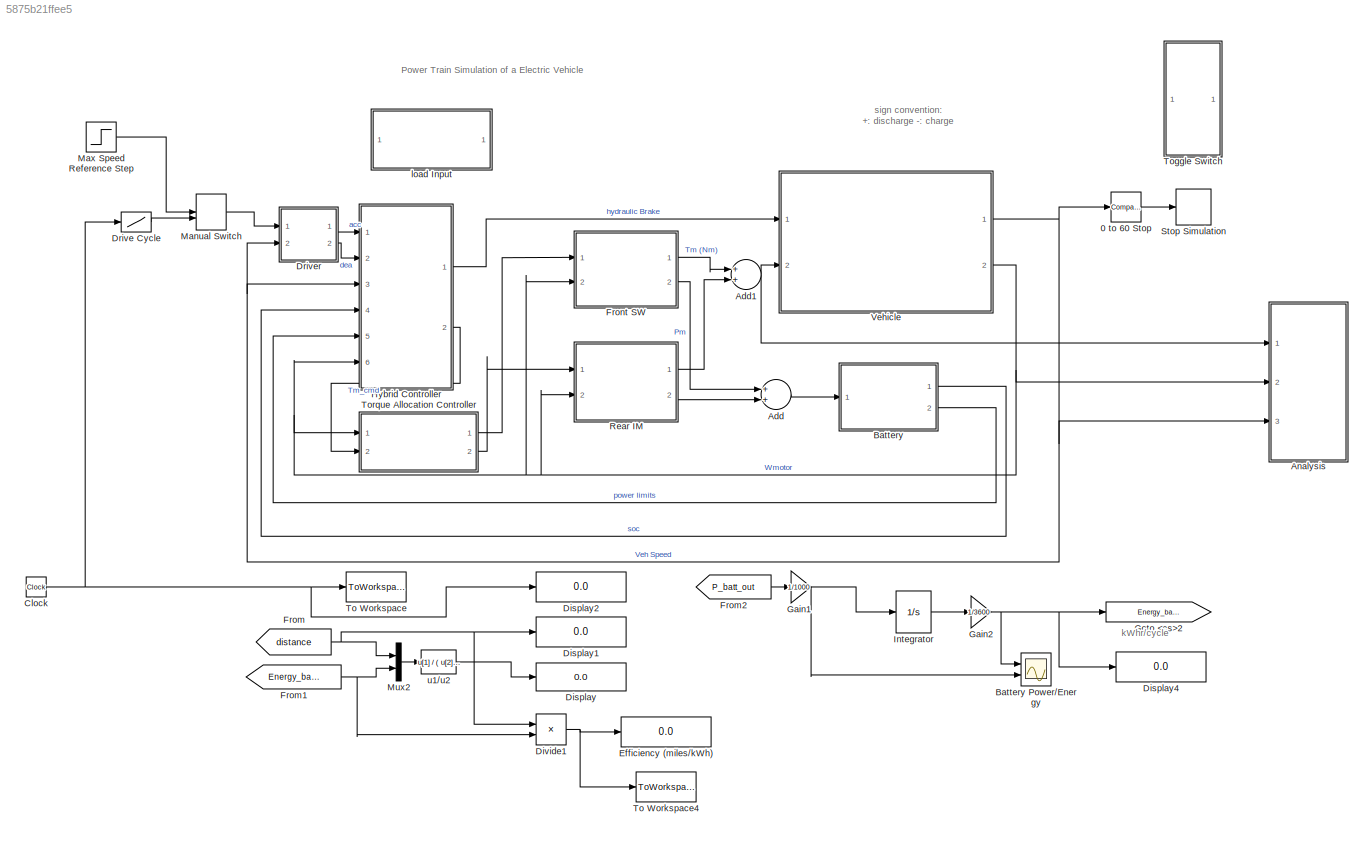
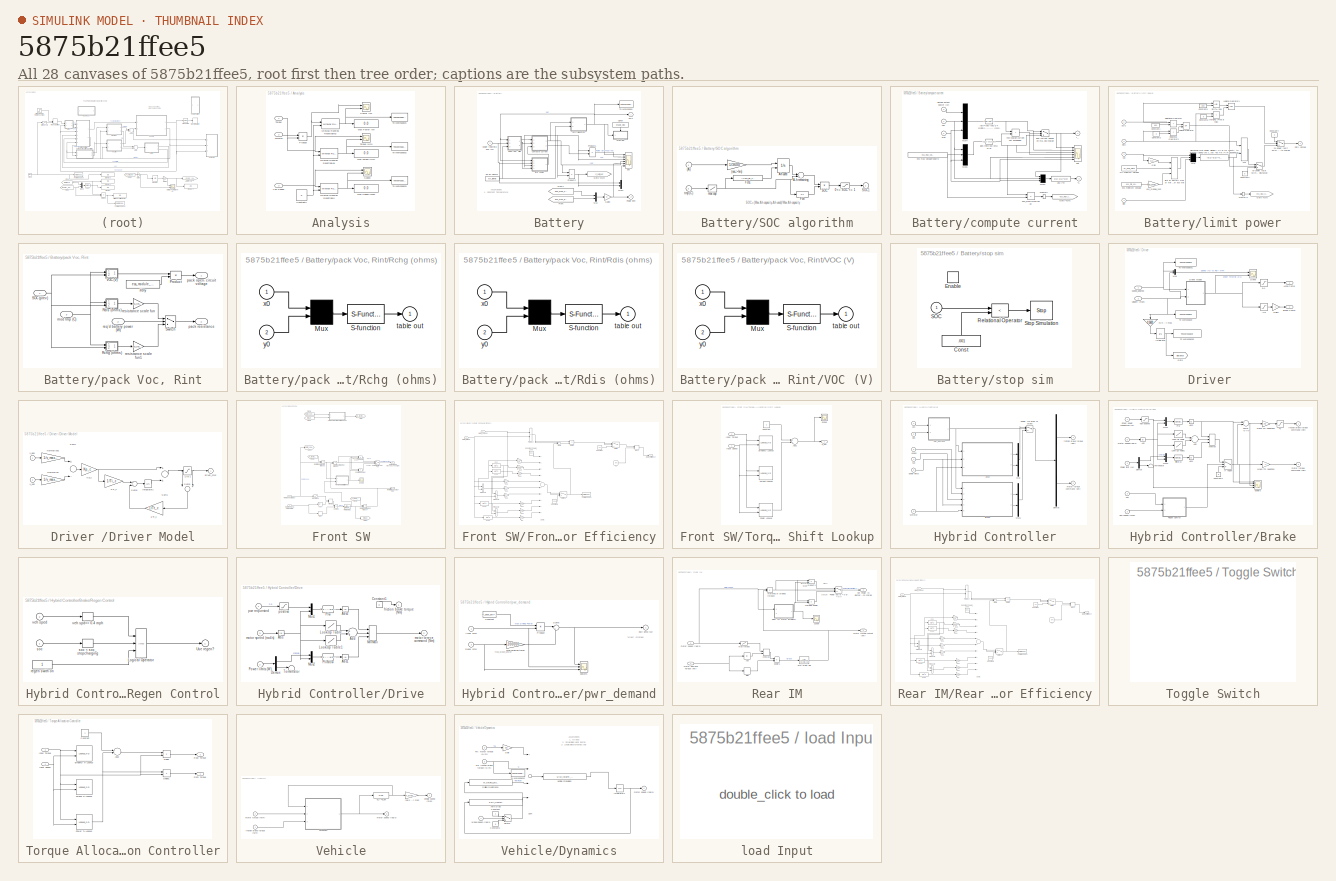
[diagram: thumbnail index - all 28 canvases of the model, root first then tree order]
MODEL slx_5875b21ffee5
KIND model
CONFIG AbsTol = 1e-6
CONFIG EnableMultiTasking = off
CONFIG FixedStep = time_step
CONFIG MaxStep = auto
CONFIG MinStep = auto
CONFIG RelTol = 1e-3
CONFIG SampleTimeConstraint = Unconstrained
CONFIG Solver = ode4
CONFIG SolverName = ode4
CONFIG StartTime = 0.0
CONFIG StopTime = time_final
BLOCK [Reference] 0 to 60 Stop  REF=simulink/Logic and Bit
Operations/Compare
To Constant
  Ports = [1, 1]
  SourceBlock = simulink/Logic and Bit\nOperations/Compare\nTo Constant
  SourceProductBaseCode = SL
  SourceProductName = Simulink
  SourceType = Compare To Constant
BLOCK [Sum] Add
  InputSameDT = off
  OutDataTypeStr = Inherit: Inherit via internal rule
  Ports = [2, 1]
  SaturateOnIntegerOverflow = off
BLOCK [Sum] Add1
  InputSameDT = off
  OutDataTypeStr = Inherit: Inherit via internal rule
  Ports = [2, 1]
  SaturateOnIntegerOverflow = off
BLOCK [SubSystem] Analysis
  Ports = [3]
  RequestExecContextInheritance = off
  Variant = off
BLOCK [Constant] Analysis/Constant2
  SampleTime = -1
  Value = 0
  VectorParams1D = off
BLOCK [Display] Analysis/Max Power (W)
  Decimation = 1
  Ports = [1]
BLOCK [Display] Analysis/Max Speed (mph)
  Decimation = 1
  Ports = [1]
BLOCK [Display] Analysis/Max Torque (Nm)
  Decimation = 1
  Ports = [1]
BLOCK [Reference] Analysis/MinMax Running Resettable  REF=simulink/Math
Operations/MinMax
Running
Resettable
  Ports = [2, 1]
  SourceBlock = simulink/Math\nOperations/MinMax\nRunning\nResettable
  SourceProductBaseCode = SL
  SourceProductName = Simulink
  SourceType = MinMax Running Resettable
BLOCK [Reference] Analysis/MinMax Running Resettable1  REF=simulink/Math
Operations/MinMax
Running
Resettable
  Ports = [2, 1]
  SourceBlock = simulink/Math\nOperations/MinMax\nRunning\nResettable
  SourceProductBaseCode = SL
  SourceProductName = Simulink
  SourceType = MinMax Running Resettable
BLOCK [Reference] Analysis/MinMax Running Resettable2  REF=simulink/Math
Operations/MinMax
Running
Resettable
  Ports = [2, 1]
  SourceBlock = simulink/Math\nOperations/MinMax\nRunning\nResettable
  SourceProductBaseCode = SL
  SourceProductName = Simulink
  SourceType = MinMax Running Resettable
BLOCK [Scope] Analysis/Power (W)
  NumInputPorts = 2
  Ports = [2]
  ScopeSpecificationString = Simulink.scopes.TimeScopeBlockCfg('CurrentConfiguration', extmgr.ConfigurationSet(extmgr.Configuration('Core','General UI',true),extmgr.Configuration('Core','Source UI',true),extmgr.Configuration('Sources','WiredSimulink',true,'DataLoggingVariableName','ScopeData2'),extmgr.Configuration('Visuals','Time Domain',true,'SerializedDisplays',{struct('MinYLimReal','-63068.33401','MaxYLimReal','54223.7385...<+1505ch>
BLOCK [Product] Analysis/Product
  InputSameDT = off
  OutDataTypeStr = Inherit: Inherit via internal rule
  Ports = [2, 1]
  RndMeth = Floor
  SaturateOnIntegerOverflow = off
BLOCK [Scope] Analysis/Speed
  NumInputPorts = 2
  Ports = [2]
  ScopeSpecificationString = Simulink.scopes.TimeScopeBlockCfg('CurrentConfiguration', extmgr.ConfigurationSet(extmgr.Configuration('Core','General UI',true),extmgr.Configuration('Core','Source UI',true),extmgr.Configuration('Sources','WiredSimulink',true,'DataLoggingVariableName','ScopeData2'),extmgr.Configuration('Visuals','Time Domain',true,'SerializedDisplays',{struct('MinYLimReal','-7.47827','MaxYLimReal','67.38141','YLa...<+1480ch>
BLOCK [ToWorkspace] Analysis/To Workspace1
  FixptAsFi = on
  MaxDataPoints = inf
  Ports = [1]
  SampleTime = -1
  Save2DSignal = 2-D array (concatenate along first dimension)
  VariableName = Max_Power
BLOCK [ToWorkspace] Analysis/To Workspace2
  FixptAsFi = on
  MaxDataPoints = inf
  Ports = [1]
  SampleTime = -1
  Save2DSignal = 2-D array (concatenate along first dimension)
  VariableName = Max_Torque
BLOCK [ToWorkspace] Analysis/To Workspace3
  FixptAsFi = on
  MaxDataPoints = inf
  Ports = [1]
  SampleTime = -1
  Save2DSignal = 2-D array (concatenate along first dimension)
  VariableName = Max_Speed
BLOCK [Inport] Analysis/Torque
  IconDisplay = Port number
BLOCK [Scope] Analysis/Torque (Nm)
  NumInputPorts = 2
  Ports = [2]
  ScopeSpecificationString = Simulink.scopes.TimeScopeBlockCfg('CurrentConfiguration', extmgr.ConfigurationSet(extmgr.Configuration('Core','General UI',true),extmgr.Configuration('Core','Source UI',true),extmgr.Configuration('Sources','WiredSimulink',true,'DataLoggingVariableName','ScopeData1'),extmgr.Configuration('Visuals','Time Domain',true,'SerializedDisplays',{struct('MinYLimReal','-687.38394','MaxYLimReal','886.77685','...<+1486ch>
BLOCK [Inport] Analysis/Veh Speed
  IconDisplay = Port number
  Port = 3
BLOCK [Inport] Analysis/Wmotor
  IconDisplay = Port number
  Port = 2
BLOCK [SubSystem] Battery
  Ports = [1, 2]
  RequestExecContextInheritance = off
  ShowPortLabels = none
  Variant = off
BLOCK [Scope] Battery Power//Energy
  Description = Power/Energy
  NumInputPorts = 2
  Ports = [2]
  ScopeSpecificationString = Simulink.scopes.TimeScopeBlockCfg('CurrentConfiguration', extmgr.ConfigurationSet(extmgr.Configuration('Core','General UI',true),extmgr.Configuration('Core','Source UI',true),extmgr.Configuration('Sources','WiredSimulink',true,'DataLoggingVariableName','ScopeData3','DataLoggingSaveFormat','StructureWithTime','DataLoggingDecimation','1','DataLoggingDecimateData',true),extmgr.Configuration('Visuals'...<+2393ch>
BLOCK [Constant] Battery/Const
  Value = enable_stop
BLOCK [From] Battery/From
  CloseFcn = tagdialog Close
  GotoTag = ess_max_dis_pwr
  TagVisibility = global
BLOCK [From] Battery/From1
  CloseFcn = tagdialog Close
  GotoTag = ess_max_chg_pwr
  TagVisibility = global
BLOCK [Gain] Battery/Gain3
BLOCK [Goto] Battery/Goto <cs>2
  GotoTag = P_batt_out
  TagVisibility = global
BLOCK [Mux] Battery/Mux
  DisplayOption = bar
  Inputs = 2
  Ports = [2, 1]
BLOCK [Mux] Battery/Mux1
  DisplayOption = bar
  Inputs = 2
  Ports = [2, 1]
BLOCK [Outport] Battery/Power limit
  IconDisplay = Port number
  InitialOutput = 0
  Port = 2
BLOCK [Product] Battery/Product1
  Inputs = /*
  Ports = [2, 1]
  RndMeth = Floor
BLOCK [Product] Battery/Product2
  Inputs = **
  Ports = [2, 1]
  RndMeth = Floor
BLOCK [Outport] Battery/SOC
  IconDisplay = Port number
  InitialOutput = 0
BLOCK [SubSystem] Battery/SOC algorithm
  AncestorBlock = lib_energy_storage/Ess Choices/energy\nstorage <ess>/SOC\nalgorithm
  Ports = [2, 1]
  RequestExecContextInheritance = off
  ShowPortLabels = none
  Variant = off
BLOCK [Inport] Battery/SOC algorithm/(A)
  IconDisplay = Port number
BLOCK [Gain] Battery/SOC algorithm/(sec->hrs)
  Gain = 1/3600
BLOCK [Saturate] Battery/SOC algorithm/0 <= SOC <= 1
  InputPortMap = u0
  LowerLimit = 0
  Ports = [1, 1]
  UpperLimit = 1
BLOCK [Sum] Battery/SOC algorithm/A-h remaining
  Inputs = -+
  Ports = [2, 1]
BLOCK [Integrator] Battery/SOC algorithm/Ah used
  InitialCondition = (1-ess_init_soc)*ess_max_ah_cap
  InitialConditionSource = external
  Ports = [2, 1]
BLOCK [Fcn] Battery/SOC algorithm/Fcn
  Expr = 1/u
BLOCK [Fcn] Battery/SOC algorithm/Fcn1
  Expr = (1-ess_init_soc)*u
BLOCK [Product] Battery/SOC algorithm/SOC
  Ports = [2, 1]
  RndMeth = Floor
BLOCK [Outport] Battery/SOC algorithm/SOC1
  IconDisplay = Port number
  InitialOutput = 0
BLOCK [Lookup] Battery/SOC algorithm/max cap
  InputValues = ess_tmp
  Table = ess_max_ah_cap*ess_cap_scale
BLOCK [Inport] Battery/SOC algorithm/tmp (C)
  IconDisplay = Port number
  Port = 2
BLOCK [ToWorkspace] Battery/To Workspace
  MaxDataPoints = inf
  Ports = [1]
  SampleTime = -1
  VariableName = output_soc
BLOCK [Scope] Battery/bat
  NumInputPorts = 6
  Ports = [6]
  ScopeSpecificationString = C++SS(StrPVP('Location','[154, 62, 781, 1070]'),StrPVP('Open','off'),MxPVP('AxesTitles',53,'struct(''axes1'',''%<SignalLabel>'',''axes2'',''%<SignalLabel>'',''axes3'',''%<SignalLabel>'',''axes4'',''%<SignalLabel>'',''axes5'',''%<SignalLabel>'',''axes6'',''%<SignalLabel>'')'),StrPVP('TimeRange','367'),StrPVP('YMin','285~0.93~306~-150~-300000~-40000'),StrPVP('YMax','320~1.04~307.1~200~300000~50000')...<+172ch>
BLOCK [SubSystem] Battery/compute current
  AncestorBlock = lib_energy_storage/Ess Choices/energy\nstorage <ess>/compute\ncurrent
  Ports = [3, 2]
  RequestExecContextInheritance = off
  ShowPortLabels = none
  Variant = off
BLOCK [Goto] Battery/compute current/Goto <cs>2
  GotoTag = ess_max_chg_pwr
  TagVisibility = global
BLOCK [Outport] Battery/compute current/I_
  IconDisplay = Port number
  InitialOutput = 0
BLOCK [Fcn] Battery/compute current/Ibty=(Voc-(Voc^2-4RPbty)^.5) ----------------------------- (2*R)
  Expr = (u[2]-(u[2]^2-4*u[1]*u[3])^.5)/(2*u[3])
BLOCK [Memory] Battery/compute current/Memory
BLOCK [Mux] Battery/compute current/Mux3
  Inputs = 3
  Ports = [3, 1]
BLOCK [Mux] Battery/compute current/Mux4
  Inputs = 3
  Ports = [3, 1]
BLOCK [Mux] Battery/compute current/Mux5
  Inputs = 3
  Ports = [3, 1]
BLOCK [Product] Battery/compute current/Pch_max=Imax*Vmax
  Ports = [2, 1]
  RndMeth = Floor
BLOCK [Inport] Battery/compute current/Rint
  IconDisplay = Port number
  Port = 2
BLOCK [Outport] Battery/compute current/V_
  IconDisplay = Port number
  InitialOutput = 0
  Port = 2
BLOCK [Inport] Battery/compute current/Voc
  IconDisplay = Port number
BLOCK [Fcn] Battery/compute current/Voc-I*R
  Expr = u[2]-u[1]*u[3]
BLOCK [Scope] Battery/compute current/bat
  NumInputPorts = 6
  Ports = [6]
  ScopeSpecificationString = C++SS(StrPVP('Location','[751, 88, 1392, 1096]'),StrPVP('Open','off'),MxPVP('AxesTitles',53,'struct(''axes1'',''%<SignalLabel>'',''axes2'',''%<SignalLabel>'',''axes3'',''%<SignalLabel>'',''axes4'',''%<SignalLabel>'',''axes5'',''%<SignalLabel>'',''axes6'',''%<SignalLabel>'')'),StrPVP('TimeRange','367'),StrPVP('YMin','0.45~0.7~306.8~-75~-150000~-60000'),StrPVP('YMax','0.52~1.2~307.9~75~150000~50000'...<+205ch>
BLOCK [Constant] Battery/compute current/ess max voltage*#batts
  Value = ess_max_volts*ess_module_num
BLOCK [Fcn] Battery/compute current/iabs min=(Voc-Vmax)//R
  Expr = (u(1)-u(2))/u(3)
BLOCK [Switch] Battery/compute current/limit current based on max voltage during charge
  Threshold = eps
BLOCK [Inport] Battery/compute current/limited output power (W)
  IconDisplay = Port number
  Port = 3
BLOCK [RelationalOperator] Battery/compute current/min charge current not exceeded
  Operator = >
  Ports = [2, 1]
BLOCK [Constant] Battery/do ex calcs?1
  Value = ess_fixtemp
BLOCK [SubSystem] Battery/limit power
  AncestorBlock = lib_energy_storage/Ess Choices/energy\nstorage <ess>/limit power
  Ports = [4, 1]
  RequestExecContextInheritance = off
  ShowPortLabels = none
  Variant = off
BLOCK [Constant] Battery/limit power/Constant1
  Value = eps
BLOCK [Constant] Battery/limit power/Constant2
  Value = 0
BLOCK [Constant] Battery/limit power/Constant3
  Value = 0
BLOCK [Constant] Battery/limit power/Constant4
  Value = 0
BLOCK [Constant] Battery/limit power/Constant5
  Value = .999
BLOCK [Constant] Battery/limit power/Constant6
  Value = 0
BLOCK [Gain] Battery/limit power/Gain
  Gain = 0.5
BLOCK [Goto] Battery/limit power/Goto <cs>2
  GotoTag = ess_max_dis_pwr
  TagVisibility = global
BLOCK [Logic] Battery/limit power/Logical Operator
  Operator = OR
  Ports = [2, 1]
BLOCK [Logic] Battery/limit power/Logical Operator1
  Ports = [2, 1]
BLOCK [Memory] Battery/limit power/Memory1
BLOCK [Mux] Battery/limit power/Mux
  Inputs = 3
  Ports = [3, 1]
BLOCK [Inport] Battery/limit power/Pbty
  IconDisplay = Port number
  Port = 2
BLOCK [Outport] Battery/limit power/Pbty, limited
  IconDisplay = Port number
  InitialOutput = 0
BLOCK [RelationalOperator] Battery/limit power/Relational Operator
  Operator = >
  Ports = [2, 1]
BLOCK [RelationalOperator] Battery/limit power/Relational Operator3
  Operator = <
  Ports = [2, 1]
BLOCK [Inport] Battery/limit power/Rint
  IconDisplay = Port number
  Port = 4
BLOCK [Inport] Battery/limit power/SOC
  IconDisplay = Port number
BLOCK [RelationalOperator] Battery/limit power/SOC>=.999
  Ports = [2, 1]
BLOCK [Inport] Battery/limit power/Voc
  IconDisplay = Port number
  Port = 3
BLOCK [RelationalOperator] Battery/limit power/charging (Preq is neg)
  Operator = <
  Ports = [2, 1]
BLOCK [Fcn] Battery/limit power/discharge max power allowed (-0.1 is for safety, to prevent taking the square of a tiny -ive # in I=I(P) elsewhere)
  Expr = (u[1]-u[2])*u[2]/u[3]-0.1
BLOCK [Constant] Battery/limit power/ess minimum voltage
  Value = ess_min_volts
BLOCK [Gain] Battery/limit power/ess_module_num
  Gain = ess_module_num
BLOCK [MinMax] Battery/limit power/limit by battery max or min mc voltage or ess min
  Function = max
  Inputs = 3
  Ports = [3, 1]
BLOCK [Constant] Battery/limit power/mc minimum voltage
  Value = m_min_volts
BLOCK [MinMax] Battery/limit power/min
  Inputs = 2
  Ports = [2, 1]
BLOCK [Switch] Battery/limit power/no power req if SOC<0 and trying to discharge
  Threshold = eps
BLOCK [Switch] Battery/limit power/no power req if SOC>.999 and trying to charge
  Threshold = eps
BLOCK [SubSystem] Battery/pack Voc, Rint
  AncestorBlock = lib_energy_storage/Ess Choices/energy\nstorage <ess>/pack\nVoc, Rint
  Ports = [3, 2]
  RequestExecContextInheritance = off
  ShowPortLabels = none
  Variant = off
BLOCK [Constant] Battery/pack Voc, Rint/#bty
  Value = ess_module_num
BLOCK [Product] Battery/pack Voc, Rint/Product
  Ports = [2, 1]
  RndMeth = Floor
BLOCK [SubSystem] Battery/pack Voc, Rint/Rchg (ohms)
  Ports = [2, 1]
  RequestExecContextInheritance = off
  ShowPortLabels = none
  Variant = off
BLOCK [Mux] Battery/pack Voc, Rint/Rchg (ohms)/Mux
  Inputs = 2
  Ports = [2, 1]
BLOCK [S-Function] Battery/pack Voc, Rint/Rchg (ohms)/S-function
  EnableBusSupport = off
  FunctionName = sftable2
  Parameters = xindex, yindex, table
  Ports = [1, 1]
  SFcnIsStateOwnerBlock = off
  SFunctionDeploymentMode = off
BLOCK [Outport] Battery/pack Voc, Rint/Rchg (ohms)/table out
  IconDisplay = Port number
  InitialOutput = 0
BLOCK [Inport] Battery/pack Voc, Rint/Rchg (ohms)/x0
  IconDisplay = Port number
BLOCK [Inport] Battery/pack Voc, Rint/Rchg (ohms)/y0
  IconDisplay = Port number
  Port = 2
BLOCK [SubSystem] Battery/pack Voc, Rint/Rdis (ohms)
  Ports = [2, 1]
  RequestExecContextInheritance = off
  ShowPortLabels = none
  Variant = off
BLOCK [Mux] Battery/pack Voc, Rint/Rdis (ohms)/Mux
  Inputs = 2
  Ports = [2, 1]
BLOCK [S-Function] Battery/pack Voc, Rint/Rdis (ohms)/S-function
  EnableBusSupport = off
  FunctionName = sftable2
  Parameters = xindex, yindex, table
  Ports = [1, 1]
  SFcnIsStateOwnerBlock = off
  SFunctionDeploymentMode = off
BLOCK [Outport] Battery/pack Voc, Rint/Rdis (ohms)/table out
  IconDisplay = Port number
  InitialOutput = 0
BLOCK [Inport] Battery/pack Voc, Rint/Rdis (ohms)/x0
  IconDisplay = Port number
BLOCK [Inport] Battery/pack Voc, Rint/Rdis (ohms)/y0
  IconDisplay = Port number
  Port = 2
BLOCK [Inport] Battery/pack Voc, Rint/SOC (prev)
  IconDisplay = Port number
BLOCK [Switch] Battery/pack Voc, Rint/Switch
BLOCK [SubSystem] Battery/pack Voc, Rint/VOC (V)
  Ports = [2, 1]
  RequestExecContextInheritance = off
  ShowPortLabels = none
  Variant = off
BLOCK [Mux] Battery/pack Voc, Rint/VOC (V)/Mux
  Inputs = 2
  Ports = [2, 1]
BLOCK [S-Function] Battery/pack Voc, Rint/VOC (V)/S-function
  EnableBusSupport = off
  FunctionName = sftable2
  Parameters = xindex, yindex, table
  Ports = [1, 1]
  SFcnIsStateOwnerBlock = off
  SFunctionDeploymentMode = off
BLOCK [Outport] Battery/pack Voc, Rint/VOC (V)/table out
  IconDisplay = Port number
  InitialOutput = 0
BLOCK [Inport] Battery/pack Voc, Rint/VOC (V)/x0
  IconDisplay = Port number
BLOCK [Inport] Battery/pack Voc, Rint/VOC (V)/y0
  IconDisplay = Port number
  Port = 2
BLOCK [Inport] Battery/pack Voc, Rint/mod tmp (C)
  IconDisplay = Port number
  Port = 3
BLOCK [Outport] Battery/pack Voc, Rint/pack open- circuit voltage
  IconDisplay = Port number
  InitialOutput = 0
BLOCK [Outport] Battery/pack Voc, Rint/pack resistance
  IconDisplay = Port number
  InitialOutput = 0
  Port = 2
BLOCK [Inport] Battery/pack Voc, Rint/req'd battery power (W)
  IconDisplay = Port number
  Port = 2
BLOCK [Gain] Battery/pack Voc, Rint/resistance scale fun
  Gain = ess_res_scale_fun(ess_res_scale_coef,ess_module_num,ess_cap_scale)
BLOCK [Gain] Battery/pack Voc, Rint/resistance scale fun1
  Gain = ess_res_scale_fun(ess_res_scale_coef,ess_module_num,ess_cap_scale)
BLOCK [Inport] Battery/power req'd into bus (W)
  IconDisplay = Port number
BLOCK [SubSystem] Battery/stop sim
  AncestorBlock = lib_energy_storage/Ess Choices/energy\nstorage <ess>/stop sim
  Ports = [1, 0, 1]
  RequestExecContextInheritance = off
  TreatAsAtomicUnit = on
  Variant = off
BLOCK [Constant] Battery/stop sim/Const
  Value = .001
BLOCK [EnablePort] Battery/stop sim/Enable
  Ports = []
BLOCK [RelationalOperator] Battery/stop sim/Relational Operator
  Operator = <
  Ports = [2, 1]
BLOCK [Inport] Battery/stop sim/SOC
  IconDisplay = Port number
BLOCK [Stop] Battery/stop sim/Stop Simulation
BLOCK [Clock] Clock
BLOCK [Display] Display
  Decimation = 1
  Ports = [1]
BLOCK [Display] Display1
  Decimation = 1
  Ports = [1]
BLOCK [Display] Display2
  Decimation = 1
  Ports = [1]
BLOCK [Display] Display4
  Decimation = 1
  Ports = [1]
BLOCK [Product] Divide1
  InputSameDT = off
  Inputs = */
  OutDataTypeStr = Inherit: Inherit via internal rule
  Ports = [2, 1]
  RndMeth = Floor
  SaturateOnIntegerOverflow = off
BLOCK [Lookup] Drive Cycle
  InputValues = cyc_mph(:,1)
  Table = cyc_mph(:,2)
BLOCK [SubSystem] Driver 
  Ports = [2, 2]
  RequestExecContextInheritance = off
  ShowPortLabels = none
  Variant = off
BLOCK [Saturate] Driver /-1~0
  InputPortMap = u0
  LowerLimit = -1
  Ports = [1, 1]
  UpperLimit = 0
BLOCK [Saturate] Driver /0~1
  InputPortMap = u0
  LowerLimit = 0
  Ports = [1, 1]
  UpperLimit = 1
BLOCK [Outport] Driver /Accel Comd
  IconDisplay = Port number
  InitialOutput = 0
BLOCK [Outport] Driver /Brake Comd
  IconDisplay = Port number
  InitialOutput = 0
  Port = 2
BLOCK [Scope] Driver /Driver
  NumInputPorts = 2
  Ports = [2]
  ScopeSpecificationString = Simulink.scopes.TimeScopeBlockCfg('CurrentConfiguration', extmgr.ConfigurationSet(extmgr.Configuration('Core','General UI',true),extmgr.Configuration('Core','Source UI',true),extmgr.Configuration('Sources','WiredSimulink',true,'DataLoggingVariableName','ScopeData1','DataLoggingSaveFormat','StructureWithTime','DataLoggingDecimation','1','DataLoggingDecimateData',true),extmgr.Configuration('Visuals'...<+2488ch>
BLOCK [SubSystem] Driver /Driver Model
  Ports = [2, 1]
  RequestExecContextInheritance = off
  Variant = off
BLOCK [Saturate] Driver /Driver Model/-1 to 1 
  InputPortMap = u0
  LowerLimit = -1
  Ports = [1, 1]
  UpperLimit = 1
BLOCK [Gain] Driver /Driver Model/1//Ti_c
  Gain = 1/Ti_c
BLOCK [Gain] Driver /Driver Model/1//Tt_c
  Gain = 1/Tt_c
BLOCK [Integrator] Driver /Driver Model/Integrator1
  Ports = [1, 1]
BLOCK [Gain] Driver /Driver Model/Kp_c
  Gain = Kp_c
BLOCK [Gain] Driver /Driver Model/Normalize
  Gain = 1/v_max_c
BLOCK [Gain] Driver /Driver Model/Normalize1
  Gain = 1/v_max_c
BLOCK [Sum] Driver /Driver Model/Sum1
  Ports = [2, 1]
BLOCK [Sum] Driver /Driver Model/Sum5
  Inputs = -+
  Ports = [2, 1]
BLOCK [Sum] Driver /Driver Model/Sum7
  Inputs = +-
  Ports = [2, 1]
BLOCK [Sum] Driver /Driver Model/Sum8
  Ports = [2, 1]
BLOCK [Outport] Driver /Driver Model/driver_cmd
  IconDisplay = Port number
BLOCK [Inport] Driver /Driver Model/v_des
  IconDisplay = Port number
BLOCK [Inport] Driver /Driver Model/v_veh
  IconDisplay = Port number
  Port = 2
BLOCK [Gain] Driver /Gain3
  Gain = -1
BLOCK [Goto] Driver /Goto
  GotoTag = distance
  TagVisibility = global
BLOCK [Integrator] Driver /Integrator
  LowerSaturationLimit = 0
  Ports = [1, 1]
BLOCK [Mux] Driver /Mux
  DisplayOption = bar
  Inputs = 2
  Ports = [2, 1]
BLOCK [ToWorkspace] Driver /To Workspace
  MaxDataPoints = inf
  Ports = [1]
  SampleTime = -1
  VariableName = actual_spd
BLOCK [ToWorkspace] Driver /To Workspace1
  MaxDataPoints = inf
  Ports = [1]
  SampleTime = -1
  VariableName = demand_spd
BLOCK [ToWorkspace] Driver /To Workspace2
  MaxDataPoints = inf
  Ports = [1]
  SampleTime = time_final
  VariableName = distance_in_mile
BLOCK [Inport] Driver /Velocity (mph)
  IconDisplay = Port number
  Port = 2
BLOCK [Gain] Driver /m//h --> mps
  Gain = 1/3600
BLOCK [Inport] Driver /speed_desired
  IconDisplay = Port number
BLOCK [Display] Efficiency (miles//kWh)
  Decimation = 1
  Ports = [1]
BLOCK [From] From
  CloseFcn = tagdialog Close
  GotoTag = distance
  TagVisibility = global
BLOCK [From] From1
  CloseFcn = tagdialog Close
  GotoTag = Energy_batt_out
  TagVisibility = global
BLOCK [From] From2
  CloseFcn = tagdialog Close
  GotoTag = P_batt_out
  TagVisibility = global
BLOCK [SubSystem] Front SW
  Ports = [2, 2]
  RequestExecContextInheritance = off
  Variant = off
BLOCK [Abs] Front SW/Abs
BLOCK [TransferFcn] Front SW/First-order lag
  Denominator = [0.05 1]
BLOCK [From] Front SW/From1
  CloseFcn = tagdialog Close
  GotoTag = torque
BLOCK [From] Front SW/From2
  CloseFcn = tagdialog Close
  GotoTag = motor_speed
BLOCK [From] Front SW/From5
  CloseFcn = tagdialog Close
  GotoTag = K_factor_out
BLOCK [From] Front SW/From6
  CloseFcn = tagdialog Close
  GotoTag = K_factor_out
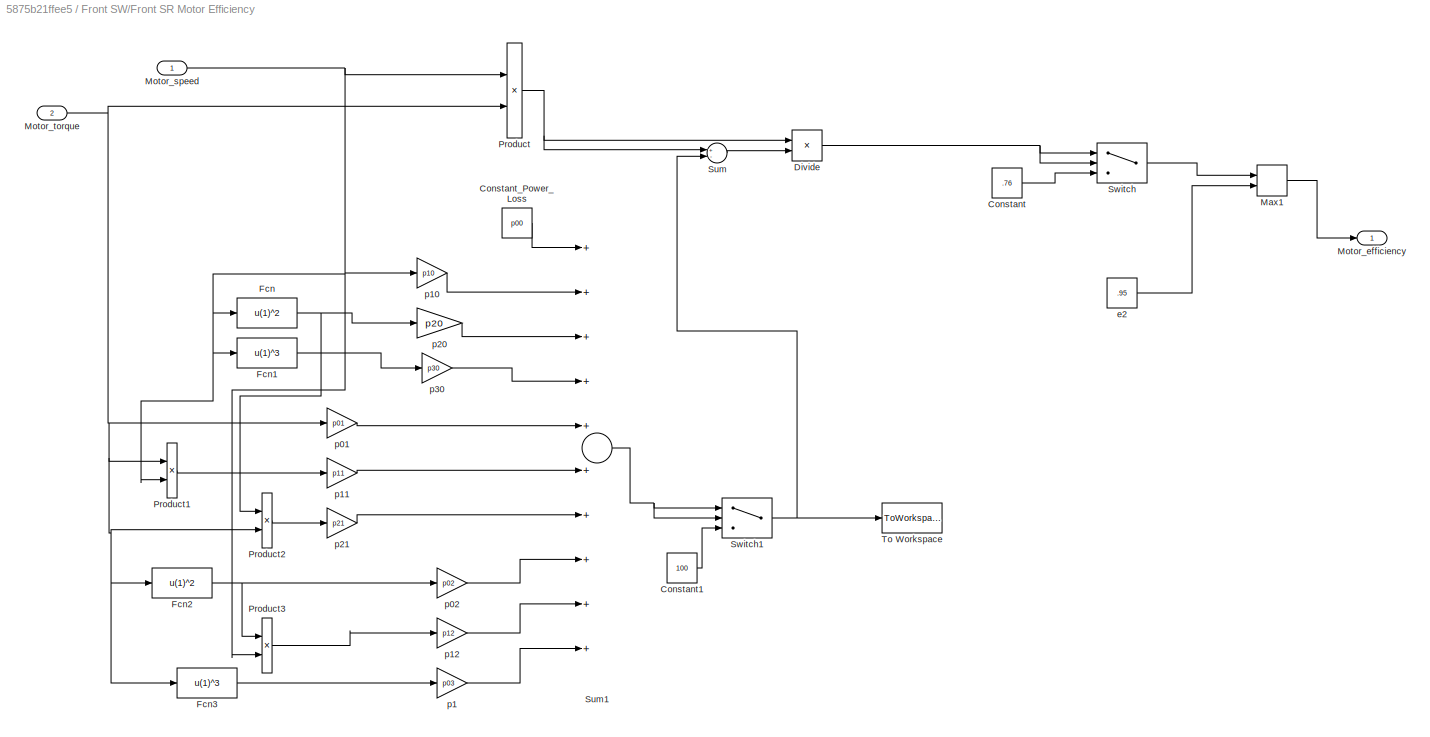
BLOCK [SubSystem] Front SW/Front SR Motor Efficiency
  Ports = [2, 1]
  RequestExecContextInheritance = off
  Variant = off
BLOCK [Constant] Front SW/Front SR Motor Efficiency/Constant
  Value = .76
BLOCK [Constant] Front SW/Front SR Motor Efficiency/Constant1
  Value = 100
BLOCK [Constant] Front SW/Front SR Motor Efficiency/Constant_Power_Loss
  Value = p00
BLOCK [Product] Front SW/Front SR Motor Efficiency/Divide
  InputSameDT = off
  Inputs = /*
  OutDataTypeStr = Inherit: Inherit via internal rule
  Ports = [2, 1]
  RndMeth = Floor
  SaturateOnIntegerOverflow = off
BLOCK [Fcn] Front SW/Front SR Motor Efficiency/Fcn
  Expr = u(1)^2
BLOCK [Fcn] Front SW/Front SR Motor Efficiency/Fcn1
  Expr = u(1)^3
BLOCK [Fcn] Front SW/Front SR Motor Efficiency/Fcn2
  Expr = u(1)^2
BLOCK [Fcn] Front SW/Front SR Motor Efficiency/Fcn3
  Expr = u(1)^3
BLOCK [MinMax] Front SW/Front SR Motor Efficiency/Max1
  InputSameDT = off
  Inputs = 2
  Ports = [2, 1]
  SaturateOnIntegerOverflow = off
BLOCK [Outport] Front SW/Front SR Motor Efficiency/Motor_efficiency
  IconDisplay = Port number
BLOCK [Inport] Front SW/Front SR Motor Efficiency/Motor_speed
  IconDisplay = Port number
BLOCK [Inport] Front SW/Front SR Motor Efficiency/Motor_torque
  IconDisplay = Port number
  Port = 2
BLOCK [Product] Front SW/Front SR Motor Efficiency/Product
  InputSameDT = off
  OutDataTypeStr = Inherit: Inherit via internal rule
  Ports = [2, 1]
  RndMeth = Floor
  SaturateOnIntegerOverflow = off
BLOCK [Product] Front SW/Front SR Motor Efficiency/Product1
  InputSameDT = off
  OutDataTypeStr = Inherit: Inherit via internal rule
  Ports = [2, 1]
  RndMeth = Floor
  SaturateOnIntegerOverflow = off
BLOCK [Product] Front SW/Front SR Motor Efficiency/Product2
  InputSameDT = off
  OutDataTypeStr = Inherit: Inherit via internal rule
  Ports = [2, 1]
  RndMeth = Floor
  SaturateOnIntegerOverflow = off
BLOCK [Product] Front SW/Front SR Motor Efficiency/Product3
  InputSameDT = off
  OutDataTypeStr = Inherit: Inherit via internal rule
  Ports = [2, 1]
  RndMeth = Floor
  SaturateOnIntegerOverflow = off
BLOCK [Sum] Front SW/Front SR Motor Efficiency/Sum
  InputSameDT = off
  Inputs = +-
  OutDataTypeStr = Inherit: Inherit via internal rule
  Ports = [2, 1]
  SaturateOnIntegerOverflow = off
BLOCK [Sum] Front SW/Front SR Motor Efficiency/Sum1
  InputSameDT = off
  Inputs = ++++++++++
  OutDataTypeStr = Inherit: Inherit via internal rule
  Ports = [10, 1]
  SaturateOnIntegerOverflow = off
BLOCK [Switch] Front SW/Front SR Motor Efficiency/Switch
  InputSameDT = off
  SaturateOnIntegerOverflow = off
  Threshold = 50
BLOCK [Switch] Front SW/Front SR Motor Efficiency/Switch1
  InputSameDT = off
  SaturateOnIntegerOverflow = off
BLOCK [ToWorkspace] Front SW/Front SR Motor Efficiency/To Workspace
  FixptAsFi = on
  MaxDataPoints = 1
  Ports = [1]
  SampleTime = -1
  Save2DSignal = 2-D array (concatenate along first dimension)
  VariableName = mtrloss_f1
BLOCK [Constant] Front SW/Front SR Motor Efficiency/e2
  Value = .95
BLOCK [Gain] Front SW/Front SR Motor Efficiency/p01
  Gain = p01
  OutDataTypeStr = Inherit: Inherit via internal rule
  ParamDataTypeStr = Inherit: Inherit via internal rule
  SaturateOnIntegerOverflow = off
BLOCK [Gain] Front SW/Front SR Motor Efficiency/p02
  Gain = p02
  OutDataTypeStr = Inherit: Inherit via internal rule
  ParamDataTypeStr = Inherit: Inherit via internal rule
  SaturateOnIntegerOverflow = off
BLOCK [Gain] Front SW/Front SR Motor Efficiency/p1
  Gain = p03
  OutDataTypeStr = Inherit: Inherit via internal rule
  ParamDataTypeStr = Inherit: Inherit via internal rule
  SaturateOnIntegerOverflow = off
BLOCK [Gain] Front SW/Front SR Motor Efficiency/p10
  Gain = p10
  OutDataTypeStr = Inherit: Inherit via internal rule
  ParamDataTypeStr = Inherit: Inherit via internal rule
  SaturateOnIntegerOverflow = off
BLOCK [Gain] Front SW/Front SR Motor Efficiency/p11
  Gain = p11
  OutDataTypeStr = Inherit: Inherit via internal rule
  ParamDataTypeStr = Inherit: Inherit via internal rule
  SaturateOnIntegerOverflow = off
BLOCK [Gain] Front SW/Front SR Motor Efficiency/p12
  Gain = p12
  OutDataTypeStr = Inherit: Inherit via internal rule
  ParamDataTypeStr = Inherit: Inherit via internal rule
  SaturateOnIntegerOverflow = off
BLOCK [Gain] Front SW/Front SR Motor Efficiency/p20
  Gain = p20
  OutDataTypeStr = Inherit: Inherit via internal rule
  ParamDataTypeStr = Inherit: Inherit via internal rule
  SaturateOnIntegerOverflow = off
BLOCK [Gain] Front SW/Front SR Motor Efficiency/p21
  Gain = p21
  OutDataTypeStr = Inherit: Inherit via internal rule
  ParamDataTypeStr = Inherit: Inherit via internal rule
  SaturateOnIntegerOverflow = off
BLOCK [Gain] Front SW/Front SR Motor Efficiency/p30
  Gain = p30
  OutDataTypeStr = Inherit: Inherit via internal rule
  ParamDataTypeStr = Inherit: Inherit via internal rule
  SaturateOnIntegerOverflow = off
BLOCK [Goto] Front SW/Goto
  GotoTag = K_factor_out
BLOCK [Goto] Front SW/Goto1
  GotoTag = motor_speed
BLOCK [Goto] Front SW/Goto3
  GotoTag = torque
BLOCK [MinMax] Front SW/MinMax
  Inputs = 2
  Ports = [2, 1]
BLOCK [Inport] Front SW/Motor demand Torque (Nm)
  IconDisplay = Port number
BLOCK [Switch] Front SW/Power out is > 0 or < 0 ?
BLOCK [Product] Front SW/Product1
  Inputs = */
  Ports = [2, 1]
  RndMeth = Floor
BLOCK [Scope] Front SW/Scope
  NumInputPorts = 1
  Ports = [1]
  ScopeSpecificationString = Simulink.scopes.TimeScopeBlockCfg('CurrentConfiguration', extmgr.ConfigurationSet(extmgr.Configuration('Core','General UI',true),extmgr.Configuration('Core','Source UI',true),extmgr.Configuration('Sources','WiredSimulink',true,'DataLoggingVariableName','ScopeData2'),extmgr.Configuration('Visuals','Time Domain',true),extmgr.Configuration('Tools','Plot Navigation',true),extmgr.Configuration('Tools',...<+40ch>
BLOCK [Signum] Front SW/Sign
BLOCK [SubSystem] Front SW/Torque Allocation Shift Lookup
  Ports = [2, 1]
  RequestExecContextInheritance = off
  Variant = off
BLOCK [Sum] Front SW/Torque Allocation Shift Lookup/Add2
  InputSameDT = off
  OutDataTypeStr = Inherit: Inherit via internal rule
  Ports = [2, 1]
  SaturateOnIntegerOverflow = off
BLOCK [Constant] Front SW/Torque Allocation Shift Lookup/Constant
BLOCK [Lookup_n-D] Front SW/Torque Allocation Shift Lookup/Efficiency Lookup
  BreakpointsForDimension1 = mtr_torque_Nm
  BreakpointsForDimension2 = mtr_speed_rad
  InternalRulePriority = Speed
  InterpMethod = Nearest
  Ports = [2, 1]
  RndMeth = Simplest
  Table = K_lookup_real_eff
BLOCK [Inport] Front SW/Torque Allocation Shift Lookup/Input Speed
  IconDisplay = Port number
BLOCK [Inport] Front SW/Torque Allocation Shift Lookup/Input Torque
  IconDisplay = Port number
  Port = 2
BLOCK [Outport] Front SW/Torque Allocation Shift Lookup/K_out
  IconDisplay = Port number
BLOCK [Lookup_n-D] Front SW/Torque Allocation Shift Lookup/Power Lookup
  BreakpointsForDimension1 = mtr_torque_Nm
  BreakpointsForDimension2 = mtr_speed_rad
  InternalRulePriority = Speed
  InterpMethod = Nearest
  Ports = [2, 1]
  RndMeth = Simplest
  Table = K_lookup_real_pow
BLOCK [Scope] Front SW/Torque Allocation Shift Lookup/Scope
  NumInputPorts = 1
  Ports = [1]
  ScopeSpecificationString = Simulink.scopes.TimeScopeBlockCfg('CurrentConfiguration', extmgr.ConfigurationSet(extmgr.Configuration('Core','General UI',true),extmgr.Configuration('Core','Source UI',true),extmgr.Configuration('Sources','WiredSimulink',true,'DataLoggingVariableName','ScopeData1'),extmgr.Configuration('Visuals','Time Domain',true),extmgr.Configuration('Tools','Plot Navigation',true),extmgr.Configuration('Tools',...<+40ch>
BLOCK [Lookup_n-D] Front SW/Torque Allocation Shift Lookup/Torque Lookup
  BreakpointsForDimension1 = mtr_torque_Nm
  BreakpointsForDimension2 = mtr_speed_rad
  InternalRulePriority = Speed
  InterpMethod = Nearest
  Ports = [2, 1]
  RndMeth = Simplest
  Table = K_lookup_real_tor
BLOCK [Product] Front SW/charging power
  Ports = [2, 1]
  RndMeth = Floor
BLOCK [Lookup] Front SW/max torque
  InputValues = m_map_spd
  Table = m_max_trq_SR
BLOCK [Inport] Front SW/motor speed (rad//s)
  IconDisplay = Port number
  Port = 2
BLOCK [Outport] Front SW/motor torque output (Nm)
  IconDisplay = Port number
  InitialOutput = 0
BLOCK [Product] Front SW/motoring or braking torque2
  Ports = [2, 1]
  RndMeth = Floor
BLOCK [Product] Front SW/motoring or braking torque3
  Ports = [2, 1]
  RndMeth = Floor
BLOCK [Product] Front SW/motoring or braking torque4
  Ports = [2, 1]
  RndMeth = Floor
BLOCK [Outport] Front SW/net Power >0 discharge <0 charge
  IconDisplay = Port number
  InitialOutput = 0
  Port = 2
BLOCK [Product] Front SW/power1
  Ports = [2, 1]
  RndMeth = Floor
BLOCK [Gain] Gain1
  Gain = 1/1000
BLOCK [Gain] Gain2
  Gain = 1/3600
BLOCK [Goto] Goto <cs>2
  GotoTag = Energy_batt_out
  TagVisibility = global
BLOCK [SubSystem] Hybrid Controller
  Ports = [6, 2]
  RequestExecContextInheritance = off
  ShowPortLabels = none
  Variant = off
BLOCK [SubSystem] Hybrid Controller/Brake
  AncestorBlock = lib_controls/<vc> prius/Coordinated\n Controller/max engine\nefficiency point
  Ports = [5, 2]
  RequestExecContextInheritance = off
  ShowPortLabels = none
  Variant = off
BLOCK [Saturate] Hybrid Controller/Brake/>0
  InputPortMap = u0
  LowerLimit = 0
  Ports = [1, 1]
  UpperLimit = 10000
BLOCK [Abs] Hybrid Controller/Brake/Abs
BLOCK [Abs] Hybrid Controller/Brake/Abs1
BLOCK [Abs] Hybrid Controller/Brake/Abs2
BLOCK [Sum] Hybrid Controller/Brake/Add
  InputSameDT = off
  OutDataTypeStr = Inherit: Inherit via internal rule
  Ports = [2, 1]
  SaturateOnIntegerOverflow = off
BLOCK [Constant] Hybrid Controller/Brake/Constant2
  Value = 0
BLOCK [Demux] Hybrid Controller/Brake/Demux
  Outputs = 2
  Ports = [1, 2]
BLOCK [Inport] Hybrid Controller/Brake/Driver power requested (W)
  IconDisplay = Port number
BLOCK [Switch] Hybrid Controller/Brake/If regen
  Threshold = 0.5
BLOCK [Lookup] Hybrid Controller/Brake/Look-Up Table
  InputValues = m_map_spd
  Table = m_max_trq_SR
BLOCK [Lookup] Hybrid Controller/Brake/Look-Up Table1
  InputValues = m_map_spd
  Table = m_max_trq_IM
BLOCK [Gain] Hybrid Controller/Brake/Make Tm negative
  Gain = -1
BLOCK [Gain] Hybrid Controller/Brake/Make Tm negative1
  Gain = FR
BLOCK [MinMax] Hybrid Controller/Brake/MinMax
  Inputs = 3
  Ports = [3, 1]
BLOCK [Mux] Hybrid Controller/Brake/Mux1
  DisplayOption = bar
  Inputs = 2
  Ports = [2, 1]
BLOCK [Mux] Hybrid Controller/Brake/Mux2
  DisplayOption = bar
  Inputs = 2
  Ports = [2, 1]
BLOCK [Saturate] Hybrid Controller/Brake/Non-positive
  InputPortMap = u0
  LowerLimit = -inf
  Ports = [1, 1]
  UpperLimit = 0
BLOCK [Fcn] Hybrid Controller/Brake/P//w
  Expr = u[1] / ( u[2] + eps*(u[2] == 0) )
BLOCK [Fcn] Hybrid Controller/Brake/Plimit//w
  Expr = u[1] / ( u[2] + eps*(u[2] == 0) )
BLOCK [Inport] Hybrid Controller/Brake/Power limit (W)
  IconDisplay = Port number
  Port = 4
BLOCK [SubSystem] Hybrid Controller/Brake/Regen Control
  Ports = [2, 1]
  RequestExecContextInheritance = off
  Variant = off
BLOCK [Logic] Hybrid Controller/Brake/Regen Control/Logical Operator
  Inputs = 3
  Ports = [3, 1]
BLOCK [Outport] Hybrid Controller/Brake/Regen Control/Use regen? 
  IconDisplay = Port number
BLOCK [Constant] Hybrid Controller/Brake/Regen Control/regen swith on
BLOCK [Inport] Hybrid Controller/Brake/Regen Control/soc
  IconDisplay = Port number
BLOCK [Relay] Hybrid Controller/Brake/Regen Control/soc < soc_stopcharging
  OffOutputValue = 1
  OffSwitchValue = regstop_soc
  OnOutputValue = 0
  OnSwitchValue = regstop_soc
BLOCK [Relay] Hybrid Controller/Brake/Regen Control/veh spd>= 0.4 mph
  OffSwitchValue = 0.4
  OnSwitchValue = 0.4
BLOCK [Inport] Hybrid Controller/Brake/Regen Control/veh sped
  IconDisplay = Port number
  Port = 2
BLOCK [Sum] Hybrid Controller/Brake/Sum8
  Inputs = +-
  Ports = [2, 1]
BLOCK [Terminator] Hybrid Controller/Brake/Terminator
BLOCK [Inport] Hybrid Controller/Brake/Veh speed (mph)
  IconDisplay = Port number
  Port = 2
BLOCK [Outport] Hybrid Controller/Brake/friction brake torque command (Nm)
  IconDisplay = Port number
BLOCK [Inport] Hybrid Controller/Brake/motor speed(rad//s)
  IconDisplay = Port number
  Port = 5
BLOCK [Outport] Hybrid Controller/Brake/motor torque command (Nm)
  IconDisplay = Port number
  Port = 2
BLOCK [Scope] Hybrid Controller/Brake/powers
  NumInputPorts = 4
  Ports = [4]
  ScopeSpecificationString = C++SS(StrPVP('Location','[940, 436, 1595, 981]'),StrPVP('Open','off'),MxPVP('AxesTitles',53,'struct(''axes1'',''%<SignalLabel>'',''axes2'',''%<SignalLabel>'',''axes3'',''%<SignalLabel>'',''axes4'',''%<SignalLabel>'')'),StrPVP('TimeRange','30'),StrPVP('YMin','0~-80000~-10000~-5'),StrPVP('YMax','20000~80000~35000~5'),StrPVP('SaveName','ScopeData8'),StrPVP('DataFormat','StructureWithTime'),StrPVP('Li...<+120ch>
BLOCK [Inport] Hybrid Controller/Brake/soc
  IconDisplay = Port number
  Port = 3
BLOCK [Demux] Hybrid Controller/Demux
  Outputs = 2
  Ports = [1, 2]
BLOCK [SubSystem] Hybrid Controller/Drive
  AncestorBlock = lib_controls/<vc> prius/Coordinated\n Controller/max engine\nefficiency point
  Ports = [3, 2]
  RequestExecContextInheritance = off
  ShowPortLabels = none
  Variant = off
BLOCK [Abs] Hybrid Controller/Drive/Abs
BLOCK [Abs] Hybrid Controller/Drive/Abs1
BLOCK [Abs] Hybrid Controller/Drive/Abs2
BLOCK [Sum] Hybrid Controller/Drive/Add
  InputSameDT = off
  OutDataTypeStr = Inherit: Inherit via internal rule
  Ports = [2, 1]
  SaturateOnIntegerOverflow = off
BLOCK [Constant] Hybrid Controller/Drive/Constant1
  Value = 0
BLOCK [Demux] Hybrid Controller/Drive/Demux
  Outputs = 2
  Ports = [1, 2]
BLOCK [Lookup] Hybrid Controller/Drive/Look-Up Table
  InputValues = m_map_spd
  Table = m_max_trq_SR
BLOCK [Lookup] Hybrid Controller/Drive/Look-Up Table1
  InputValues = m_map_spd
  Table = m_max_trq_IM
BLOCK [MinMax] Hybrid Controller/Drive/MinMax
  Inputs = 3
  Ports = [3, 1]
BLOCK [Mux] Hybrid Controller/Drive/Mux1
  DisplayOption = bar
  Inputs = 2
  Ports = [2, 1]
BLOCK [Mux] Hybrid Controller/Drive/Mux2
  DisplayOption = bar
  Inputs = 2
  Ports = [2, 1]
BLOCK [Fcn] Hybrid Controller/Drive/P//w
  Expr = u[1] / ( u[2] + eps*(u[2] == 0) )
BLOCK [Fcn] Hybrid Controller/Drive/Plimit//w
  Expr = u[1] / ( u[2] + eps*(u[2] == 0) )
BLOCK [Inport] Hybrid Controller/Drive/Power limits (W)
  IconDisplay = Port number
  Port = 2
BLOCK [Terminator] Hybrid Controller/Drive/Terminator
BLOCK [Outport] Hybrid Controller/Drive/friction brake torque (Nm)
  IconDisplay = Port number
BLOCK [Inport] Hybrid Controller/Drive/motor speed (rad//s)
  IconDisplay = Port number
  Port = 3
BLOCK [Outport] Hybrid Controller/Drive/motor torque command (Nm)
  IconDisplay = Port number
  Port = 2
BLOCK [Saturate] Hybrid Controller/Drive/positive
  InputPortMap = u0
  LowerLimit = 0
  Ports = [1, 1]
  UpperLimit = inf
BLOCK [Inport] Hybrid Controller/Drive/pwr requested
  IconDisplay = Port number
BLOCK [Mux] Hybrid Controller/Mux
  DisplayOption = bar
  Inputs = 2
  Ports = [2, 1]
BLOCK [Mux] Hybrid Controller/Mux1
  DisplayOption = bar
  Inputs = 2
  Ports = [2, 1]
BLOCK [Inport] Hybrid Controller/Vsped
  IconDisplay = Port number
  Port = 3
BLOCK [Inport] Hybrid Controller/Wmotor
  IconDisplay = Port number
  Port = 6
BLOCK [Inport] Hybrid Controller/acc
  IconDisplay = Port number
BLOCK [Inport] Hybrid Controller/dec
  IconDisplay = Port number
  Port = 2
BLOCK [Outport] Hybrid Controller/friction brake torque (Nm)
  IconDisplay = Port number
BLOCK [Outport] Hybrid Controller/motor torque command (Nm)
  IconDisplay = Port number
  Port = 2
BLOCK [Switch] Hybrid Controller/power >=0 drive <0 brake
  InputSameDT = off
BLOCK [Inport] Hybrid Controller/power limits
  IconDisplay = Port number
  Port = 5
BLOCK [SubSystem] Hybrid Controller/pwr_demand
  Ports = [2, 1]
  RequestExecContextInheritance = off
  Variant = off
BLOCK [Inport] Hybrid Controller/pwr_demand/Accel cmd
  IconDisplay = Port number
BLOCK [Constant] Hybrid Controller/pwr_demand/Constant
  Value = m_peak_pwr*1000
BLOCK [Inport] Hybrid Controller/pwr_demand/Decel cmd
  IconDisplay = Port number
  Port = 2
BLOCK [Gain] Hybrid Controller/pwr_demand/Max braking torqu
  Gain = 200000
BLOCK [Product] Hybrid Controller/pwr_demand/Product
  Ports = [2, 1]
  RndMeth = Floor
BLOCK [Sum] Hybrid Controller/pwr_demand/Sum6
  IconShape = round
  Inputs = |+-
  Ports = [2, 1]
BLOCK [Scope] Hybrid Controller/pwr_demand/powers
  NumInputPorts = 3
  Ports = [3]
  ScopeSpecificationString = C++SS(StrPVP('Location','[130, 545, 785, 1090]'),StrPVP('Open','off'),MxPVP('AxesTitles',53,'struct(''axes1'',''%<SignalLabel>'',''axes2'',''%<SignalLabel>'',''axes3'',''%<SignalLabel>'')'),StrPVP('TimeRange','30'),StrPVP('YMin','0~-80000~-10000'),StrPVP('YMax','20000~80000~35000'),StrPVP('SaveName','ScopeData4'),StrPVP('DataFormat','StructureWithTime'),StrPVP('LimitDataPoints','off'),StrPVP('Bloc...<+86ch>
BLOCK [Outport] Hybrid Controller/pwr_demand/pwr dmd (W)
  IconDisplay = Port number
BLOCK [Inport] Hybrid Controller/soc
  IconDisplay = Port number
  Port = 4
BLOCK [Integrator] Integrator
  LowerSaturationLimit = 0
  Ports = [1, 1]
BLOCK [ManualSwitch] Manual Switch
BLOCK [Step] Max Speed Reference Step
  After = 500
  SampleTime = 0
  Time = 0.01
BLOCK [Mux] Mux2
  DisplayOption = bar
  Inputs = 2
  Ports = [2, 1]
BLOCK [SubSystem] Rear IM
  Ports = [2, 2]
  RequestExecContextInheritance = off
  Variant = off
BLOCK [Abs] Rear IM/Abs
BLOCK [TransferFcn] Rear IM/First-order lag
  Denominator = [0.05 1]
BLOCK [MinMax] Rear IM/MinMax
  Inputs = 2
  Ports = [2, 1]
BLOCK [Inport] Rear IM/Motor demand Torque (Nm)
  IconDisplay = Port number
BLOCK [Switch] Rear IM/Power out is > 0 or < 0 ?
BLOCK [Product] Rear IM/Product1
  Inputs = */
  Ports = [2, 1]
  RndMeth = Floor
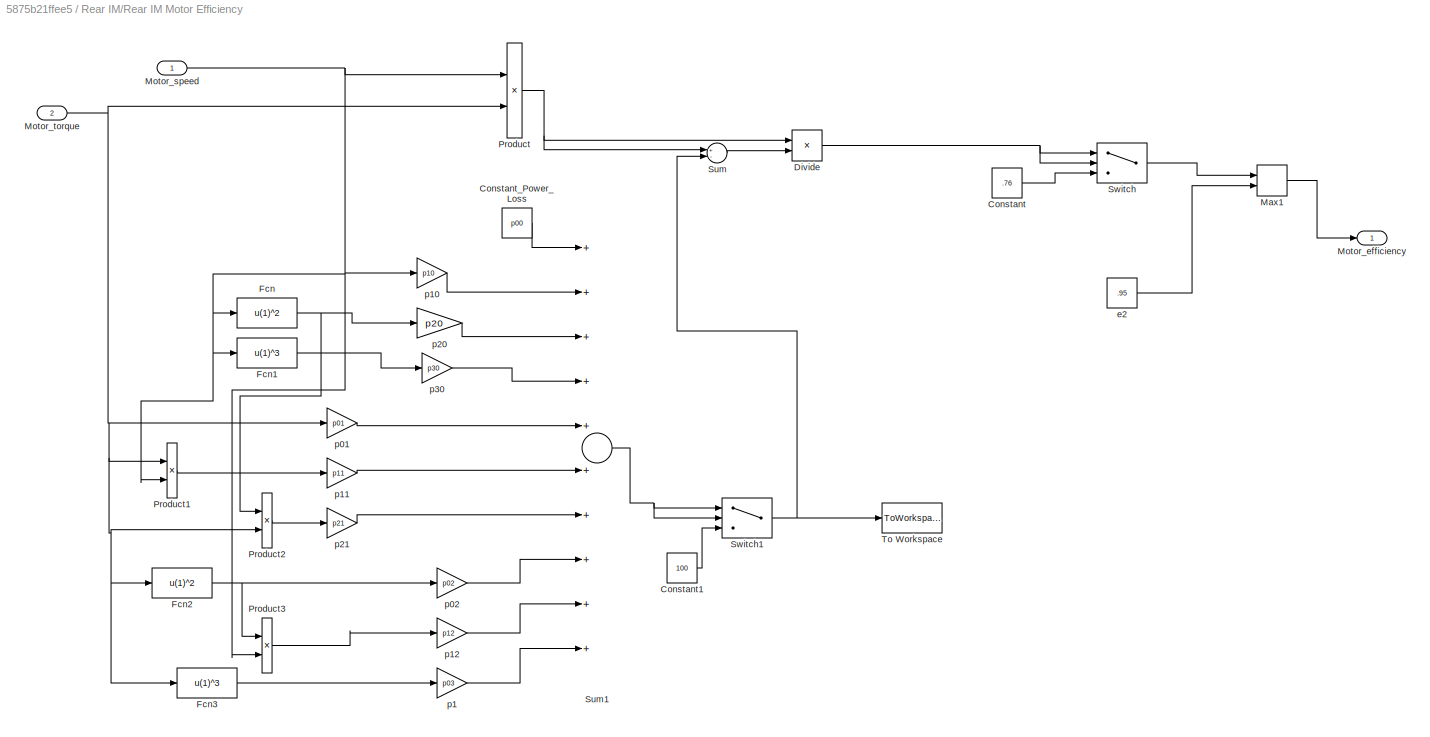
BLOCK [SubSystem] Rear IM/Rear IM Motor Efficiency
  Ports = [2, 1]
  RequestExecContextInheritance = off
  Variant = off
BLOCK [Constant] Rear IM/Rear IM Motor Efficiency/Constant
  Value = .76
BLOCK [Constant] Rear IM/Rear IM Motor Efficiency/Constant1
  Value = 100
BLOCK [Constant] Rear IM/Rear IM Motor Efficiency/Constant_Power_Loss
  Value = p00
BLOCK [Product] Rear IM/Rear IM Motor Efficiency/Divide
  InputSameDT = off
  Inputs = /*
  OutDataTypeStr = Inherit: Inherit via internal rule
  Ports = [2, 1]
  RndMeth = Floor
  SaturateOnIntegerOverflow = off
BLOCK [Fcn] Rear IM/Rear IM Motor Efficiency/Fcn
  Expr = u(1)^2
BLOCK [Fcn] Rear IM/Rear IM Motor Efficiency/Fcn1
  Expr = u(1)^3
BLOCK [Fcn] Rear IM/Rear IM Motor Efficiency/Fcn2
  Expr = u(1)^2
BLOCK [Fcn] Rear IM/Rear IM Motor Efficiency/Fcn3
  Expr = u(1)^3
BLOCK [MinMax] Rear IM/Rear IM Motor Efficiency/Max1
  InputSameDT = off
  Inputs = 2
  Ports = [2, 1]
  SaturateOnIntegerOverflow = off
BLOCK [Outport] Rear IM/Rear IM Motor Efficiency/Motor_efficiency
  IconDisplay = Port number
BLOCK [Inport] Rear IM/Rear IM Motor Efficiency/Motor_speed
  IconDisplay = Port number
BLOCK [Inport] Rear IM/Rear IM Motor Efficiency/Motor_torque
  IconDisplay = Port number
  Port = 2
BLOCK [Product] Rear IM/Rear IM Motor Efficiency/Product
  InputSameDT = off
  OutDataTypeStr = Inherit: Inherit via internal rule
  Ports = [2, 1]
  RndMeth = Floor
  SaturateOnIntegerOverflow = off
BLOCK [Product] Rear IM/Rear IM Motor Efficiency/Product1
  InputSameDT = off
  OutDataTypeStr = Inherit: Inherit via internal rule
  Ports = [2, 1]
  RndMeth = Floor
  SaturateOnIntegerOverflow = off
BLOCK [Product] Rear IM/Rear IM Motor Efficiency/Product2
  InputSameDT = off
  OutDataTypeStr = Inherit: Inherit via internal rule
  Ports = [2, 1]
  RndMeth = Floor
  SaturateOnIntegerOverflow = off
BLOCK [Product] Rear IM/Rear IM Motor Efficiency/Product3
  InputSameDT = off
  OutDataTypeStr = Inherit: Inherit via internal rule
  Ports = [2, 1]
  RndMeth = Floor
  SaturateOnIntegerOverflow = off
BLOCK [Sum] Rear IM/Rear IM Motor Efficiency/Sum
  InputSameDT = off
  Inputs = +-
  OutDataTypeStr = Inherit: Inherit via internal rule
  Ports = [2, 1]
  SaturateOnIntegerOverflow = off
BLOCK [Sum] Rear IM/Rear IM Motor Efficiency/Sum1
  InputSameDT = off
  Inputs = ++++++++++
  OutDataTypeStr = Inherit: Inherit via internal rule
  Ports = [10, 1]
  SaturateOnIntegerOverflow = off
BLOCK [Switch] Rear IM/Rear IM Motor Efficiency/Switch
  InputSameDT = off
  SaturateOnIntegerOverflow = off
  Threshold = 50
BLOCK [Switch] Rear IM/Rear IM Motor Efficiency/Switch1
  InputSameDT = off
  SaturateOnIntegerOverflow = off
BLOCK [ToWorkspace] Rear IM/Rear IM Motor Efficiency/To Workspace
  FixptAsFi = on
  MaxDataPoints = 1
  Ports = [1]
  SampleTime = -1
  Save2DSignal = 2-D array (concatenate along first dimension)
  VariableName = mtrloss_f
BLOCK [Constant] Rear IM/Rear IM Motor Efficiency/e2
  Value = .95
BLOCK [Gain] Rear IM/Rear IM Motor Efficiency/p01
  Gain = p01
  OutDataTypeStr = Inherit: Inherit via internal rule
  ParamDataTypeStr = Inherit: Inherit via internal rule
  SaturateOnIntegerOverflow = off
BLOCK [Gain] Rear IM/Rear IM Motor Efficiency/p02
  Gain = p02
  OutDataTypeStr = Inherit: Inherit via internal rule
  ParamDataTypeStr = Inherit: Inherit via internal rule
  SaturateOnIntegerOverflow = off
BLOCK [Gain] Rear IM/Rear IM Motor Efficiency/p1
  Gain = p03
  OutDataTypeStr = Inherit: Inherit via internal rule
  ParamDataTypeStr = Inherit: Inherit via internal rule
  SaturateOnIntegerOverflow = off
BLOCK [Gain] Rear IM/Rear IM Motor Efficiency/p10
  Gain = p10
  OutDataTypeStr = Inherit: Inherit via internal rule
  ParamDataTypeStr = Inherit: Inherit via internal rule
  SaturateOnIntegerOverflow = off
BLOCK [Gain] Rear IM/Rear IM Motor Efficiency/p11
  Gain = p11
  OutDataTypeStr = Inherit: Inherit via internal rule
  ParamDataTypeStr = Inherit: Inherit via internal rule
  SaturateOnIntegerOverflow = off
BLOCK [Gain] Rear IM/Rear IM Motor Efficiency/p12
  Gain = p12
  OutDataTypeStr = Inherit: Inherit via internal rule
  ParamDataTypeStr = Inherit: Inherit via internal rule
  SaturateOnIntegerOverflow = off
BLOCK [Gain] Rear IM/Rear IM Motor Efficiency/p20
  Gain = p20
  OutDataTypeStr = Inherit: Inherit via internal rule
  ParamDataTypeStr = Inherit: Inherit via internal rule
  SaturateOnIntegerOverflow = off
BLOCK [Gain] Rear IM/Rear IM Motor Efficiency/p21
  Gain = p21
  OutDataTypeStr = Inherit: Inherit via internal rule
  ParamDataTypeStr = Inherit: Inherit via internal rule
  SaturateOnIntegerOverflow = off
BLOCK [Gain] Rear IM/Rear IM Motor Efficiency/p30
  Gain = p30
  OutDataTypeStr = Inherit: Inherit via internal rule
  ParamDataTypeStr = Inherit: Inherit via internal rule
  SaturateOnIntegerOverflow = off
BLOCK [Scope] Rear IM/Scope
  NumInputPorts = 1
  Ports = [1]
  ScopeSpecificationString = Simulink.scopes.TimeScopeBlockCfg('CurrentConfiguration', extmgr.ConfigurationSet(extmgr.Configuration('Core','General UI',true),extmgr.Configuration('Core','Source UI',true),extmgr.Configuration('Sources','WiredSimulink',true,'DataLoggingVariableName','ScopeData1'),extmgr.Configuration('Visuals','Time Domain',true,'SerializedDisplays',{struct('MinYLimReal','-0.10736','MaxYLimReal','0.97623','YLab...<+1460ch>
BLOCK [Signum] Rear IM/Sign
BLOCK [Product] Rear IM/charging power
  Ports = [2, 1]
  RndMeth = Floor
BLOCK [Lookup] Rear IM/max torque
  InputValues = m_map_spd
  Table = m_max_trq_IM
BLOCK [Inport] Rear IM/motor speed (rad//s)
  IconDisplay = Port number
  Port = 2
BLOCK [Outport] Rear IM/motor torque output (Nm)
  IconDisplay = Port number
  InitialOutput = 0
BLOCK [Product] Rear IM/motoring or braking torque2
  Ports = [2, 1]
  RndMeth = Floor
BLOCK [Outport] Rear IM/net Power >0 discharge <0 charge
  IconDisplay = Port number
  InitialOutput = 0
  Port = 2
BLOCK [Product] Rear IM/power1
  Ports = [2, 1]
  RndMeth = Floor
BLOCK [Stop] Stop Simulation
BLOCK [ToWorkspace] To Workspace
  MaxDataPoints = inf
  Ports = [1]
  SampleTime = -1
  VariableName = timet
BLOCK [ToWorkspace] To Workspace4
  FixptAsFi = on
  MaxDataPoints = inf
  Ports = [1]
  SampleTime = -1
  Save2DSignal = 2-D array (concatenate along first dimension)
  VariableName = Efficiency
BLOCK [SubSystem] Toggle Switch
  DialogController = hmiCreateDDGDialog
  IsWebBlock = on
  MaskHideContents = on
  Ports = []
  RequestExecContextInheritance = off
  Variant = off
BLOCK [SubSystem] Torque Allocation Controller
  Ports = [2, 2]
  RequestExecContextInheritance = off
  Variant = off
BLOCK [Sum] Torque Allocation Controller/Add2
  InputSameDT = off
  Inputs = +-
  OutDataTypeStr = Inherit: Inherit via internal rule
  Ports = [2, 1]
  SaturateOnIntegerOverflow = off
BLOCK [Constant] Torque Allocation Controller/Constant
BLOCK [Product] Torque Allocation Controller/Divide
  InputSameDT = off
  Inputs = **
  OutDataTypeStr = Inherit: Inherit via internal rule
  Ports = [2, 1]
  RndMeth = Floor
  SaturateOnIntegerOverflow = off
BLOCK [Product] Torque Allocation Controller/Divide1
  InputSameDT = off
  Inputs = **
  OutDataTypeStr = Inherit: Inherit via internal rule
  Ports = [2, 1]
  RndMeth = Floor
  SaturateOnIntegerOverflow = off
BLOCK [Lookup_n-D] Torque Allocation Controller/Efficiency TA Lookup
  BreakpointsForDimension1 = mtr_torque_Nm
  BreakpointsForDimension2 = mtr_speed_rad
  InternalRulePriority = Speed
  InterpMethod = Nearest
  Ports = [2, 1]
  RndMeth = Simplest
  Table = opt_output_efficiency_location112
BLOCK [Outport] Torque Allocation Controller/Front Torque
  IconDisplay = Port number
BLOCK [Inport] Torque Allocation Controller/Input Speed
  IconDisplay = Port number
BLOCK [Inport] Torque Allocation Controller/Input Torque
  IconDisplay = Port number
  Port = 2
BLOCK [Lookup_n-D] Torque Allocation Controller/Power TA Lookup
  BreakpointsForDimension1 = mtr_torque_Nm
  BreakpointsForDimension2 = mtr_speed_rad
  InternalRulePriority = Speed
  InterpMethod = Nearest
  Ports = [2, 1]
  RndMeth = Simplest
  Table = opt_output_power_location112
BLOCK [Outport] Torque Allocation Controller/Rear Torque
  IconDisplay = Port number
  Port = 2
BLOCK [Lookup_n-D] Torque Allocation Controller/Torque TA Lookup
  BreakpointsForDimension1 = mtr_torque_Nm
  BreakpointsForDimension2 = mtr_speed_rad
  InternalRulePriority = Speed
  InterpMethod = Nearest
  Ports = [2, 1]
  RndMeth = Simplest
  Table = opt_output_torque_location112
BLOCK [SubSystem] Vehicle
  Ports = [2, 2]
  RequestExecContextInheritance = off
  Variant = off
BLOCK [SubSystem] Vehicle/Dynamics
  Ports = [3, 1]
  RequestExecContextInheritance = off
  Variant = off
BLOCK [Fcn] Vehicle/Dynamics/Aero Drag
  Expr = 0.5*A_frontal*rho_air* C_d*u^2*R_tire^3/FR^2
BLOCK [Constant] Vehicle/Dynamics/Constant
BLOCK [Constant] Vehicle/Dynamics/Constant1
  Value = 0
BLOCK [Gain] Vehicle/Dynamics/Gain
  Gain = FR
BLOCK [Integrator] Vehicle/Dynamics/Integrator1
  InitialCondition = 0.1
  LimitOutput = on
  LowerSaturationLimit = 0.1
  Ports = [1, 1]
BLOCK [Fcn] Vehicle/Dynamics/Rolling Resistance
  Expr = M_total*g_gravity*f_rolling*R_tire*u
BLOCK [Sum] Vehicle/Dynamics/Sum
  InputSameDT = off
  Inputs = +---
  OutDataTypeStr = Inherit: Inherit via internal rule
  Ports = [4, 1]
BLOCK [Switch] Vehicle/Dynamics/Switch
  InputSameDT = off
  Threshold = 0.001
BLOCK [Inport] Vehicle/Dynamics/Tfb: friction brake torque (N//m) 
  IconDisplay = Port number
  Port = 3
BLOCK [Inport] Vehicle/Dynamics/Tm: motor torque (N//m)
  IconDisplay = Port number
  Port = 2
BLOCK [ToWorkspace] Vehicle/Dynamics/To Workspace3
  MaxDataPoints = inf
  Ports = [1]
  SampleTime = -1
  VariableName = T_fb
BLOCK [Fcn] Vehicle/Dynamics/Vehicle Propulsion
  Expr = u/(M_total*R_tire^2/FR)
BLOCK [Outport] Vehicle/Dynamics/motor speed (rad//s)
  IconDisplay = Port number
  InitialOutput = 0
BLOCK [Inport] Vehicle/Dynamics/wheel speed (rad//s)
  IconDisplay = Port number
BLOCK [Inport] Vehicle/friction brake torque (N//m)
  IconDisplay = Port number
BLOCK [Outport] Vehicle/motor speed (rad//s)
  IconDisplay = Port number
  Port = 2
BLOCK [Inport] Vehicle/motor torque (N//m)
  IconDisplay = Port number
  Port = 2
BLOCK [Gain] Vehicle/rad//s --> mph
  Gain = R_tire/1000*0.621371*3600
BLOCK [Outport] Vehicle/vehicle speed (mph)
  IconDisplay = Port number
BLOCK [Fcn] Vehicle/w_r->w_wh
  Expr = u/FR
BLOCK [SubSystem] load Input
  OpenFcn = ev_sim_init
  Ports = []
  RequestExecContextInheritance = off
  ShowPortLabels = none
  Variant = off
BLOCK [Fcn] u1//u2
  Expr = u[1] / ( u[2] + eps*(u[2] == 0) ) * ess_max_kwhr_cap
ANNOTATION (root): Power Train Simulation of a Electric Vehicle
ANNOTATION (root): kWhr/cycle
ANNOTATION (root): sign convention: +: discharge -: charge
ANNOTATION Battery: Assumptions: 1. Constant Temperature
ANNOTATION Battery/SOC algorithm: SOC=(Max Ah capacity-Ah used)/Max Ah capacity
ANNOTATION Front SW: charge
ANNOTATION Front SW: disch
ANNOTATION Front SW: discharging power
ANNOTATION Hybrid Controller/Brake: Td-Treg
ANNOTATION Hybrid Controller/pwr_demand: >0:acc; <0:brake
ANNOTATION Hybrid Controller/pwr_demand: max_brake_power
ANNOTATION Rear IM: charge
ANNOTATION Rear IM: disch
ANNOTATION Rear IM: discharging power
ANNOTATION Vehicle/Dynamics: Assumptions: 1. No loss 2. Small pinion gear inertia 3. Longitudinal dynamics only
ANNOTATION load Input: double_click to load
LINE 0 to 60 Stop:1 -> Stop Simulation:1
NET Add1:1 -> Analysis:1, Vehicle:2
LINE Add:1 -> Battery:1
NET Analysis/Constant2:1 -> Analysis/MinMax Running Resettable1:2, Analysis/MinMax Running Resettable2:2, Analysis/MinMax Running Resettable:2
NET Analysis/MinMax Running Resettable1:1 -> Analysis/Max Torque (Nm):1, Analysis/To Workspace2:1, Analysis/Torque (Nm):2
NET Analysis/MinMax Running Resettable2:1 -> Analysis/Max Power (W):1, Analysis/Power (W):2, Analysis/To Workspace1:1
NET Analysis/MinMax Running Resettable:1 -> Analysis/Max Speed (mph):1, Analysis/Speed:2, Analysis/To Workspace3:1
NET Analysis/Product:1 -> Analysis/MinMax Running Resettable2:1, Analysis/Power (W):1
NET Analysis/Torque:1 -> Analysis/MinMax Running Resettable1:1, Analysis/Product:2, Analysis/Torque (Nm):1
NET Analysis/Veh Speed:1 -> Analysis/MinMax Running Resettable:1, Analysis/Speed:1
LINE Analysis/Wmotor:1 -> Analysis/Product:1
LINE Battery/Const:1 -> Battery/stop sim:enable
LINE Battery/From1:1 -> Battery/Mux:1
LINE Battery/From:1 -> Battery/Mux:2
NET Battery/Gain3:1 -> Battery/Power limit:1, Battery/bat:5
LINE Battery/Mux1:1 -> Battery/bat:6
LINE Battery/Mux:1 -> Battery/Gain3:1
LINE Battery/Product1:1 -> Battery/bat:2
NET Battery/Product2:1 -> Battery/Goto <cs>2:1, Battery/Mux1:2
NET Battery/SOC algorithm:1 -> Battery/SOC:1, Battery/To Workspace:1, Battery/bat:1, Battery/limit power:1, Battery/pack Voc, Rint:1, Battery/stop sim:1
NET Battery/compute current:1 -> Battery/Product2:1, Battery/SOC algorithm:1, Battery/bat:4
LINE Battery/compute current:2 -> Battery/Product1:2
NET Battery/do ex calcs?1:1 -> Battery/SOC algorithm:2, Battery/pack Voc, Rint:3
LINE Battery/limit power:1 -> Battery/compute current:3
NET Battery/pack Voc, Rint:1 -> Battery/Product1:1, Battery/Product2:2, Battery/bat:3, Battery/compute current:1, Battery/limit power:3
NET Battery/pack Voc, Rint:2 -> Battery/compute current:2, Battery/limit power:4
NET Battery/power req'd into bus (W):1 -> Battery/Mux1:1, Battery/limit power:2, Battery/pack Voc, Rint:2
LINE Battery:1 -> Hybrid Controller:4
LINE Battery:2 -> Hybrid Controller:5
NET Clock:1 -> Display2:1, Drive Cycle:1, To Workspace:1
NET Divide1:1 -> Efficiency (miles//kWh):1, To Workspace4:1
LINE Drive Cycle:1 -> Manual Switch:2
LINE Driver /-1~0:1 -> Driver /Gain3:1
LINE Driver /0~1:1 -> Driver /Accel Comd:1
NET Driver /Driver Model/-1 to 1 :1 -> Driver /Driver Model/Sum5:2, Driver /Driver Model/driver_cmd:1
LINE Driver /Driver Model/1//Ti_c:1 -> Driver /Driver Model/Sum8:1
LINE Driver /Driver Model/1//Tt_c:1 -> Driver /Driver Model/Sum8:2
LINE Driver /Driver Model/Integrator1:1 -> Driver /Driver Model/Sum1:2
NET Driver /Driver Model/Kp_c:1 -> Driver /Driver Model/1//Ti_c:1, Driver /Driver Model/Sum1:1
LINE Driver /Driver Model/Normalize1:1 -> Driver /Driver Model/Sum7:1
LINE Driver /Driver Model/Normalize:1 -> Driver /Driver Model/Sum7:2
NET Driver /Driver Model/Sum1:1 -> Driver /Driver Model/-1 to 1 :1, Driver /Driver Model/Sum5:1
LINE Driver /Driver Model/Sum5:1 -> Driver /Driver Model/1//Tt_c:1
LINE Driver /Driver Model/Sum7:1 -> Driver /Driver Model/Kp_c:1
LINE Driver /Driver Model/Sum8:1 -> Driver /Driver Model/Integrator1:1
LINE Driver /Driver Model/v_des:1 -> Driver /Driver Model/Normalize1:1
LINE Driver /Driver Model/v_veh:1 -> Driver /Driver Model/Normalize:1
NET Driver /Driver Model:1 -> Driver /-1~0:1, Driver /0~1:1, Driver /Driver:2
LINE Driver /Gain3:1 -> Driver /Brake Comd:1
NET Driver /Integrator:1 -> Driver /Goto:1, Driver /To Workspace2:1
LINE Driver /Mux:1 -> Driver /Driver:1
NET Driver /Velocity (mph):1 -> Driver /Driver Model:2, Driver /Mux:2, Driver /To Workspace:1, Driver /m//h --> mps:1
LINE Driver /m//h --> mps:1 -> Driver /Integrator:1
NET Driver /speed_desired:1 -> Driver /Driver Model:1, Driver /Mux:1, Driver /To Workspace1:1
LINE Driver :1 -> Hybrid Controller:1
LINE Driver :2 -> Hybrid Controller:2
NET From1:1 -> Divide1:2, Mux2:2
LINE From2:1 -> Gain1:1
NET From:1 -> Display1:1, Divide1:1, Mux2:1
LINE Front SW/Abs:1 -> Front SW/MinMax:2
NET Front SW/First-order lag:1 -> Front SW/Front SR Motor Efficiency:2, Front SW/Goto3:1, Front SW/motoring or braking torque4:2
LINE Front SW/From1:1 -> Front SW/Torque Allocation Shift Lookup:2
LINE Front SW/From2:1 -> Front SW/Torque Allocation Shift Lookup:1
LINE Front SW/From5:1 -> Front SW/motoring or braking torque3:1
LINE Front SW/From6:1 -> Front SW/motoring or braking torque4:1
LINE Front SW/Front SR Motor Efficiency/Constant1:1 -> Front SW/Front SR Motor Efficiency/Switch1:3
LINE Front SW/Front SR Motor Efficiency/Constant:1 -> Front SW/Front SR Motor Efficiency/Switch:3
LINE Front SW/Front SR Motor Efficiency/Constant_Power_Loss:1 -> Front SW/Front SR Motor Efficiency/Sum1:1
NET Front SW/Front SR Motor Efficiency/Divide:1 -> Front SW/Front SR Motor Efficiency/Switch:1, Front SW/Front SR Motor Efficiency/Switch:2
LINE Front SW/Front SR Motor Efficiency/Fcn1:1 -> Front SW/Front SR Motor Efficiency/p30:1
NET Front SW/Front SR Motor Efficiency/Fcn2:1 -> Front SW/Front SR Motor Efficiency/Product3:1, Front SW/Front SR Motor Efficiency/p02:1
LINE Front SW/Front SR Motor Efficiency/Fcn3:1 -> Front SW/Front SR Motor Efficiency/p1:1
NET Front SW/Front SR Motor Efficiency/Fcn:1 -> Front SW/Front SR Motor Efficiency/Product2:1, Front SW/Front SR Motor Efficiency/p20:1
LINE Front SW/Front SR Motor Efficiency/Max1:1 -> Front SW/Front SR Motor Efficiency/Motor_efficiency:1
NET Front SW/Front SR Motor Efficiency/Motor_speed:1 -> Front SW/Front SR Motor Efficiency/Fcn1:1, Front SW/Front SR Motor Efficiency/Fcn:1, Front SW/Front SR Motor Efficiency/Product1:2, Front SW/Front SR Motor Efficiency/Product3:2, Front SW/Front SR Motor Efficiency/Product:1, Front SW/Front SR Motor Efficiency/p10:1
NET Front SW/Front SR Motor Efficiency/Motor_torque:1 -> Front SW/Front SR Motor Efficiency/Fcn2:1, Front SW/Front SR Motor Efficiency/Fcn3:1, Front SW/Front SR Motor Efficiency/Product1:1, Front SW/Front SR Motor Efficiency/Product2:2, Front SW/Front SR Motor Efficiency/Product:2, Front SW/Front SR Motor Efficiency/p01:1
LINE Front SW/Front SR Motor Efficiency/Product1:1 -> Front SW/Front SR Motor Efficiency/p11:1
LINE Front SW/Front SR Motor Efficiency/Product2:1 -> Front SW/Front SR Motor Efficiency/p21:1
LINE Front SW/Front SR Motor Efficiency/Product3:1 -> Front SW/Front SR Motor Efficiency/p12:1
NET Front SW/Front SR Motor Efficiency/Product:1 -> Front SW/Front SR Motor Efficiency/Divide:1, Front SW/Front SR Motor Efficiency/Sum:1
NET Front SW/Front SR Motor Efficiency/Sum1:1 -> Front SW/Front SR Motor Efficiency/Switch1:1, Front SW/Front SR Motor Efficiency/Switch1:2
LINE Front SW/Front SR Motor Efficiency/Sum:1 -> Front SW/Front SR Motor Efficiency/Divide:2
NET Front SW/Front SR Motor Efficiency/Switch1:1 -> Front SW/Front SR Motor Efficiency/Sum:2, Front SW/Front SR Motor Efficiency/To Workspace:1
LINE Front SW/Front SR Motor Efficiency/Switch:1 -> Front SW/Front SR Motor Efficiency/Max1:1
LINE Front SW/Front SR Motor Efficiency/e2:1 -> Front SW/Front SR Motor Efficiency/Max1:2
LINE Front SW/Front SR Motor Efficiency/p01:1 -> Front SW/Front SR Motor Efficiency/Sum1:5
LINE Front SW/Front SR Motor Efficiency/p02:1 -> Front SW/Front SR Motor Efficiency/Sum1:8
LINE Front SW/Front SR Motor Efficiency/p10:1 -> Front SW/Front SR Motor Efficiency/Sum1:2
LINE Front SW/Front SR Motor Efficiency/p11:1 -> Front SW/Front SR Motor Efficiency/Sum1:6
LINE Front SW/Front SR Motor Efficiency/p12:1 -> Front SW/Front SR Motor Efficiency/Sum1:9
LINE Front SW/Front SR Motor Efficiency/p1:1 -> Front SW/Front SR Motor Efficiency/Sum1:10
LINE Front SW/Front SR Motor Efficiency/p20:1 -> Front SW/Front SR Motor Efficiency/Sum1:3
LINE Front SW/Front SR Motor Efficiency/p21:1 -> Front SW/Front SR Motor Efficiency/Sum1:7
LINE Front SW/Front SR Motor Efficiency/p30:1 -> Front SW/Front SR Motor Efficiency/Sum1:4
NET Front SW/Front SR Motor Efficiency:1 -> Front SW/Product1:2, Front SW/Scope:1, Front SW/charging power:2
LINE Front SW/MinMax:1 -> Front SW/power1:1
NET Front SW/Motor demand Torque (Nm):1 -> Front SW/Abs:1, Front SW/Sign:1
LINE Front SW/Power out is > 0 or < 0 ?:1 -> Front SW/net Power >0 discharge <0 charge:1
LINE Front SW/Product1:1 -> Front SW/Power out is > 0 or < 0 ?:1
LINE Front SW/Sign:1 -> Front SW/power1:2
NET Front SW/Torque Allocation Shift Lookup/Add2:1 -> Front SW/Torque Allocation Shift Lookup/K_out:1, Front SW/Torque Allocation Shift Lookup/Scope:1
LINE Front SW/Torque Allocation Shift Lookup/Constant:1 -> Front SW/Torque Allocation Shift Lookup/Add2:1
NET Front SW/Torque Allocation Shift Lookup/Input Speed:1 -> Front SW/Torque Allocation Shift Lookup/Efficiency Lookup:2, Front SW/Torque Allocation Shift Lookup/Power Lookup:2, Front SW/Torque Allocation Shift Lookup/Torque Lookup:2
NET Front SW/Torque Allocation Shift Lookup/Input Torque:1 -> Front SW/Torque Allocation Shift Lookup/Efficiency Lookup:1, Front SW/Torque Allocation Shift Lookup/Power Lookup:1, Front SW/Torque Allocation Shift Lookup/Torque Lookup:1
LINE Front SW/Torque Allocation Shift Lookup/Power Lookup:1 -> Front SW/Torque Allocation Shift Lookup/Add2:2
LINE Front SW/Torque Allocation Shift Lookup:1 -> Front SW/Goto:1
LINE Front SW/charging power:1 -> Front SW/Power out is > 0 or < 0 ?:3
LINE Front SW/max torque:1 -> Front SW/MinMax:1
NET Front SW/motor speed (rad//s):1 -> Front SW/Goto1:1, Front SW/max torque:1, Front SW/motoring or braking torque3:2
NET Front SW/motoring or braking torque2:1 -> Front SW/Power out is > 0 or < 0 ?:2, Front SW/Product1:1, Front SW/charging power:1
NET Front SW/motoring or braking torque3:1 -> Front SW/Front SR Motor Efficiency:1, Front SW/motoring or braking torque2:1
NET Front SW/motoring or braking torque4:1 -> Front SW/motor torque output (Nm):1, Front SW/motoring or braking torque2:2
LINE Front SW/power1:1 -> Front SW/First-order lag:1
LINE Front SW:1 -> Add1:1
LINE Front SW:2 -> Add:1
NET Gain1:1 -> Battery Power//Energy:2, Integrator:1
NET Gain2:1 -> Battery Power//Energy:1, Display4:1, Goto <cs>2:1
LINE Hybrid Controller/Brake:1 -> Hybrid Controller/Mux1:1
LINE Hybrid Controller/Brake:2 -> Hybrid Controller/Mux1:2
LINE Hybrid Controller/Demux:1 -> Hybrid Controller/friction brake torque (Nm):1
LINE Hybrid Controller/Demux:2 -> Hybrid Controller/motor torque command (Nm):1
LINE Hybrid Controller/Drive:1 -> Hybrid Controller/Mux:1
LINE Hybrid Controller/Drive:2 -> Hybrid Controller/Mux:2
LINE Hybrid Controller/Mux1:1 -> Hybrid Controller/power >=0 drive <0 brake:3
LINE Hybrid Controller/Mux:1 -> Hybrid Controller/power >=0 drive <0 brake:1
LINE Hybrid Controller/Vsped:1 -> Hybrid Controller/Brake:2
NET Hybrid Controller/Wmotor:1 -> Hybrid Controller/Brake:5, Hybrid Controller/Drive:3
LINE Hybrid Controller/acc:1 -> Hybrid Controller/pwr_demand:1
LINE Hybrid Controller/dec:1 -> Hybrid Controller/pwr_demand:2
LINE Hybrid Controller/power >=0 drive <0 brake:1 -> Hybrid Controller/Demux:1
NET Hybrid Controller/power limits:1 -> Hybrid Controller/Brake:4, Hybrid Controller/Drive:2
NET Hybrid Controller/pwr_demand/Accel cmd:1 -> Hybrid Controller/pwr_demand/Product:2, Hybrid Controller/pwr_demand/powers:2
LINE Hybrid Controller/pwr_demand/Constant:1 -> Hybrid Controller/pwr_demand/Product:1
NET Hybrid Controller/pwr_demand/Decel cmd:1 -> Hybrid Controller/pwr_demand/Max braking torqu:1, Hybrid Controller/pwr_demand/powers:3
LINE Hybrid Controller/pwr_demand/Max braking torqu:1 -> Hybrid Controller/pwr_demand/Sum6:2
LINE Hybrid Controller/pwr_demand/Product:1 -> Hybrid Controller/pwr_demand/Sum6:1
NET Hybrid Controller/pwr_demand/Sum6:1 -> Hybrid Controller/pwr_demand/powers:1, Hybrid Controller/pwr_demand/pwr dmd (W):1
NET Hybrid Controller/pwr_demand:1 -> Hybrid Controller/Brake:1, Hybrid Controller/Drive:1, Hybrid Controller/power >=0 drive <0 brake:2
LINE Hybrid Controller/soc:1 -> Hybrid Controller/Brake:3
LINE Hybrid Controller:1 -> Vehicle:1
LINE Hybrid Controller:2 -> Torque Allocation Controller:2
LINE Integrator:1 -> Gain2:1
LINE Manual Switch:1 -> Driver :1
LINE Max Speed Reference Step:1 -> Manual Switch:1
LINE Mux2:1 -> u1//u2:1
LINE Rear IM/Abs:1 -> Rear IM/MinMax:2
NET Rear IM/First-order lag:1 -> Rear IM/motor torque output (Nm):1, Rear IM/motoring or braking torque2:2
LINE Rear IM/MinMax:1 -> Rear IM/power1:1
NET Rear IM/Motor demand Torque (Nm):1 -> Rear IM/Abs:1, Rear IM/Sign:1
LINE Rear IM/Power out is > 0 or < 0 ?:1 -> Rear IM/net Power >0 discharge <0 charge:1
LINE Rear IM/Product1:1 -> Rear IM/Power out is > 0 or < 0 ?:1
LINE Rear IM/Rear IM Motor Efficiency/Constant1:1 -> Rear IM/Rear IM Motor Efficiency/Switch1:3
LINE Rear IM/Rear IM Motor Efficiency/Constant:1 -> Rear IM/Rear IM Motor Efficiency/Switch:3
LINE Rear IM/Rear IM Motor Efficiency/Constant_Power_Loss:1 -> Rear IM/Rear IM Motor Efficiency/Sum1:1
NET Rear IM/Rear IM Motor Efficiency/Divide:1 -> Rear IM/Rear IM Motor Efficiency/Switch:1, Rear IM/Rear IM Motor Efficiency/Switch:2
LINE Rear IM/Rear IM Motor Efficiency/Fcn1:1 -> Rear IM/Rear IM Motor Efficiency/p30:1
NET Rear IM/Rear IM Motor Efficiency/Fcn2:1 -> Rear IM/Rear IM Motor Efficiency/Product3:1, Rear IM/Rear IM Motor Efficiency/p02:1
LINE Rear IM/Rear IM Motor Efficiency/Fcn3:1 -> Rear IM/Rear IM Motor Efficiency/p1:1
NET Rear IM/Rear IM Motor Efficiency/Fcn:1 -> Rear IM/Rear IM Motor Efficiency/Product2:1, Rear IM/Rear IM Motor Efficiency/p20:1
LINE Rear IM/Rear IM Motor Efficiency/Max1:1 -> Rear IM/Rear IM Motor Efficiency/Motor_efficiency:1
NET Rear IM/Rear IM Motor Efficiency/Motor_speed:1 -> Rear IM/Rear IM Motor Efficiency/Fcn1:1, Rear IM/Rear IM Motor Efficiency/Fcn:1, Rear IM/Rear IM Motor Efficiency/Product1:2, Rear IM/Rear IM Motor Efficiency/Product3:2, Rear IM/Rear IM Motor Efficiency/Product:1, Rear IM/Rear IM Motor Efficiency/p10:1
NET Rear IM/Rear IM Motor Efficiency/Motor_torque:1 -> Rear IM/Rear IM Motor Efficiency/Fcn2:1, Rear IM/Rear IM Motor Efficiency/Fcn3:1, Rear IM/Rear IM Motor Efficiency/Product1:1, Rear IM/Rear IM Motor Efficiency/Product2:2, Rear IM/Rear IM Motor Efficiency/Product:2, Rear IM/Rear IM Motor Efficiency/p01:1
LINE Rear IM/Rear IM Motor Efficiency/Product1:1 -> Rear IM/Rear IM Motor Efficiency/p11:1
LINE Rear IM/Rear IM Motor Efficiency/Product2:1 -> Rear IM/Rear IM Motor Efficiency/p21:1
LINE Rear IM/Rear IM Motor Efficiency/Product3:1 -> Rear IM/Rear IM Motor Efficiency/p12:1
NET Rear IM/Rear IM Motor Efficiency/Product:1 -> Rear IM/Rear IM Motor Efficiency/Divide:1, Rear IM/Rear IM Motor Efficiency/Sum:1
NET Rear IM/Rear IM Motor Efficiency/Sum1:1 -> Rear IM/Rear IM Motor Efficiency/Switch1:1, Rear IM/Rear IM Motor Efficiency/Switch1:2
LINE Rear IM/Rear IM Motor Efficiency/Sum:1 -> Rear IM/Rear IM Motor Efficiency/Divide:2
NET Rear IM/Rear IM Motor Efficiency/Switch1:1 -> Rear IM/Rear IM Motor Efficiency/Sum:2, Rear IM/Rear IM Motor Efficiency/To Workspace:1
LINE Rear IM/Rear IM Motor Efficiency/Switch:1 -> Rear IM/Rear IM Motor Efficiency/Max1:1
LINE Rear IM/Rear IM Motor Efficiency/e2:1 -> Rear IM/Rear IM Motor Efficiency/Max1:2
LINE Rear IM/Rear IM Motor Efficiency/p01:1 -> Rear IM/Rear IM Motor Efficiency/Sum1:5
LINE Rear IM/Rear IM Motor Efficiency/p02:1 -> Rear IM/Rear IM Motor Efficiency/Sum1:8
LINE Rear IM/Rear IM Motor Efficiency/p10:1 -> Rear IM/Rear IM Motor Efficiency/Sum1:2
LINE Rear IM/Rear IM Motor Efficiency/p11:1 -> Rear IM/Rear IM Motor Efficiency/Sum1:6
LINE Rear IM/Rear IM Motor Efficiency/p12:1 -> Rear IM/Rear IM Motor Efficiency/Sum1:9
LINE Rear IM/Rear IM Motor Efficiency/p1:1 -> Rear IM/Rear IM Motor Efficiency/Sum1:10
LINE Rear IM/Rear IM Motor Efficiency/p20:1 -> Rear IM/Rear IM Motor Efficiency/Sum1:3
LINE Rear IM/Rear IM Motor Efficiency/p21:1 -> Rear IM/Rear IM Motor Efficiency/Sum1:7
LINE Rear IM/Rear IM Motor Efficiency/p30:1 -> Rear IM/Rear IM Motor Efficiency/Sum1:4
NET Rear IM/Rear IM Motor Efficiency:1 -> Rear IM/Product1:2, Rear IM/Scope:1, Rear IM/charging power:2
LINE Rear IM/Sign:1 -> Rear IM/power1:2
LINE Rear IM/charging power:1 -> Rear IM/Power out is > 0 or < 0 ?:3
LINE Rear IM/max torque:1 -> Rear IM/MinMax:1
NET Rear IM/motor speed (rad//s):1 -> Rear IM/Rear IM Motor Efficiency:1, Rear IM/max torque:1, Rear IM/motoring or braking torque2:1
NET Rear IM/motoring or braking torque2:1 -> Rear IM/Power out is > 0 or < 0 ?:2, Rear IM/Product1:1, Rear IM/charging power:1
LINE Rear IM/power1:1 -> Rear IM/First-order lag:1
LINE Rear IM:1 -> Add1:2
LINE Rear IM:2 -> Add:2
LINE Torque Allocation Controller/Add2:1 -> Torque Allocation Controller/Divide:1
LINE Torque Allocation Controller/Constant:1 -> Torque Allocation Controller/Add2:1
LINE Torque Allocation Controller/Divide1:1 -> Torque Allocation Controller/Front Torque:1
LINE Torque Allocation Controller/Divide:1 -> Torque Allocation Controller/Rear Torque:1
NET Torque Allocation Controller/Input Speed:1 -> Torque Allocation Controller/Efficiency TA Lookup:2, Torque Allocation Controller/Power TA Lookup:2, Torque Allocation Controller/Torque TA Lookup:2
NET Torque Allocation Controller/Input Torque:1 -> Torque Allocation Controller/Divide1:2, Torque Allocation Controller/Divide:2, Torque Allocation Controller/Efficiency TA Lookup:1, Torque Allocation Controller/Power TA Lookup:1, Torque Allocation Controller/Torque TA Lookup:1
NET Torque Allocation Controller/Power TA Lookup:1 -> Torque Allocation Controller/Add2:2, Torque Allocation Controller/Divide1:1
LINE Torque Allocation Controller:1 -> Front SW:1
LINE Torque Allocation Controller:2 -> Rear IM:1
LINE Vehicle/Dynamics/Aero Drag:1 -> Vehicle/Dynamics/Sum:4
LINE Vehicle/Dynamics/Constant1:1 -> Vehicle/Dynamics/Switch:3
LINE Vehicle/Dynamics/Constant:1 -> Vehicle/Dynamics/Switch:1
LINE Vehicle/Dynamics/Gain:1 -> Vehicle/Dynamics/Sum:1
NET Vehicle/Dynamics/Integrator1:1 -> Vehicle/Dynamics/Aero Drag:1, Vehicle/Dynamics/motor speed (rad//s):1
LINE Vehicle/Dynamics/Rolling Resistance:1 -> Vehicle/Dynamics/Sum:3
LINE Vehicle/Dynamics/Sum:1 -> Vehicle/Dynamics/Vehicle Propulsion:1
LINE Vehicle/Dynamics/Switch:1 -> Vehicle/Dynamics/Rolling Resistance:1
NET Vehicle/Dynamics/Tfb: friction brake torque (N//m) :1 -> Vehicle/Dynamics/Sum:2, Vehicle/Dynamics/To Workspace3:1
LINE Vehicle/Dynamics/Tm: motor torque (N//m):1 -> Vehicle/Dynamics/Gain:1
LINE Vehicle/Dynamics/Vehicle Propulsion:1 -> Vehicle/Dynamics/Integrator1:1
LINE Vehicle/Dynamics/wheel speed (rad//s):1 -> Vehicle/Dynamics/Switch:2
NET Vehicle/Dynamics:1 -> Vehicle/motor speed (rad//s):1, Vehicle/w_r->w_wh:1
LINE Vehicle/friction brake torque (N//m):1 -> Vehicle/Dynamics:3
LINE Vehicle/motor torque (N//m):1 -> Vehicle/Dynamics:2
LINE Vehicle/rad//s --> mph:1 -> Vehicle/vehicle speed (mph):1
NET Vehicle/w_r->w_wh:1 -> Vehicle/Dynamics:1, Vehicle/rad//s --> mph:1
NET Vehicle:1 -> 0 to 60 Stop:1, Analysis:3, Driver :2, Hybrid Controller:3
NET Vehicle:2 -> Analysis:2, Front SW:2, Hybrid Controller:6, Rear IM:2, Torque Allocation Controller:1
LINE u1//u2:1 -> Display:1
note: NET lines group one-source signal fan-out (src -> all destinations, sorted); 1:1 wires keep LINE
